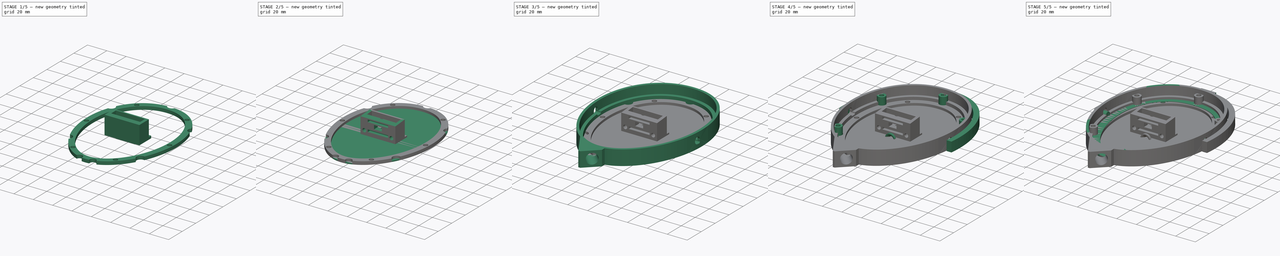
[diagram: build sequence overview — one tinted view per stage of 5, left to right]
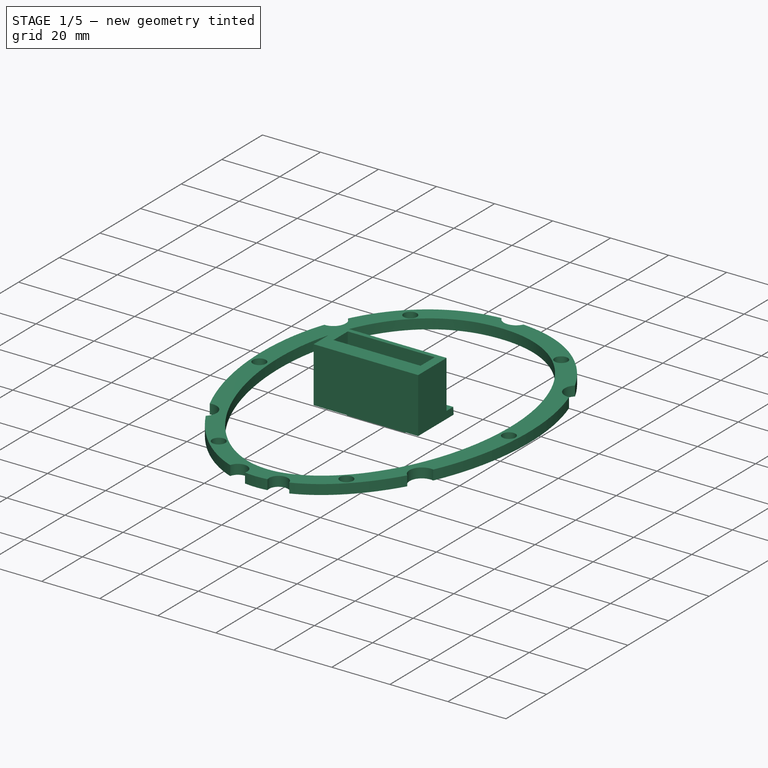
[diagram: stage 1 of 5 — iso view after this stage's code; geometry added in this stage tinted green]
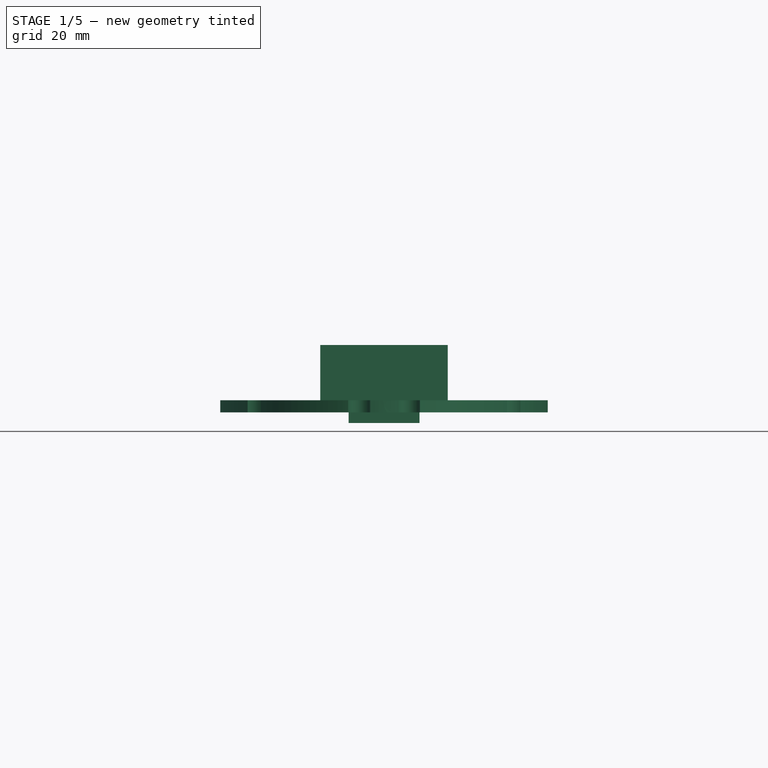
[diagram: stage 1 of 5 — front view after this stage's code; geometry added in this stage tinted green]
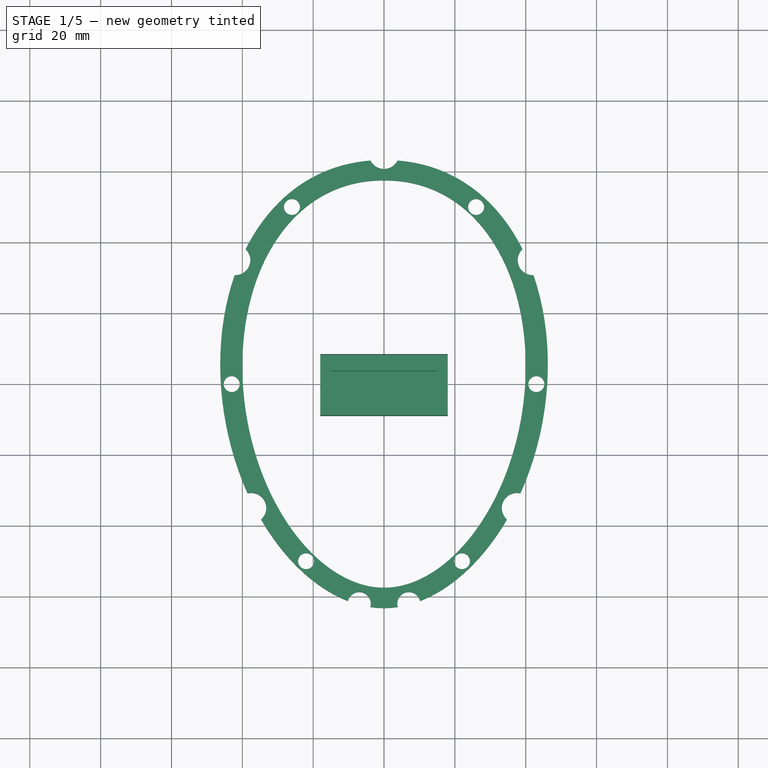
[diagram: stage 1 of 5 — top view after this stage's code; geometry added in this stage tinted green]
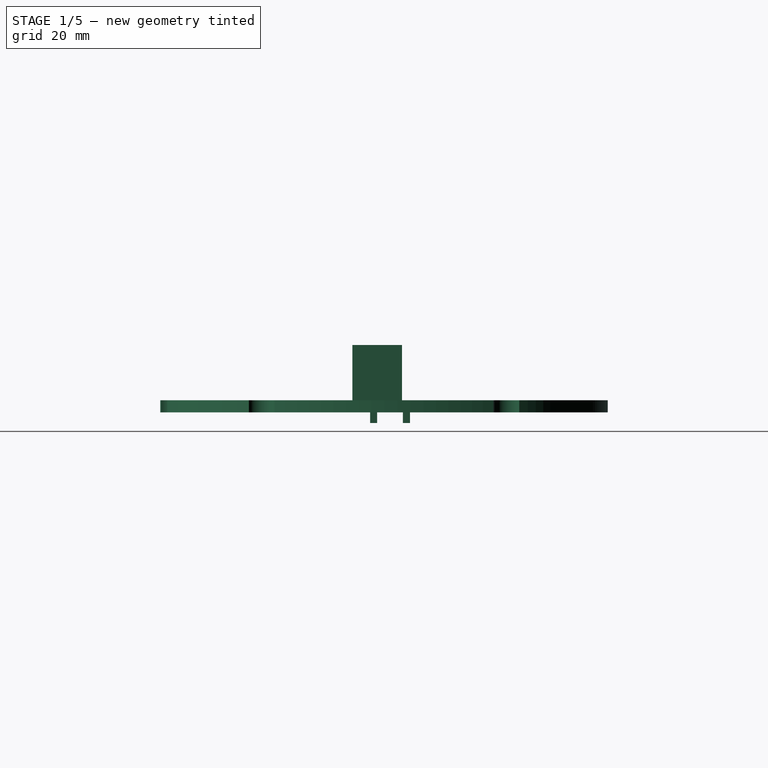
[diagram: stage 1 of 5 — right view after this stage's code; geometry added in this stage tinted green]
FCSTD DOCUMENT  (FreeCAD 1.1R44795 (Git))
Label: h1
License: All rights reserved
LicenseURL: https://en.wikipedia.org/wiki/All_rights_reserved
objects: Sketcher::SketchObject×54, PartDesign::Pocket×18, PartDesign::Pad×17, PartDesign::Hole×14, PartDesign::Body×9, App::Point×9, PartDesign::Plane×5, PartDesign::Fillet×4, PartDesign::Chamfer×2, PartDesign::Mirrored×1
note: 289 computed .brp shape members not serialized (recipe doc carries the construction recipe); baked Part::Feature solids carry a one-line shape summary decoded from their .brp

FEATURE [PartDesign::Body] Body007  label="Spacer"
  AllowCompound = false
  Group = -> [Sketch044,Pad019,Sketch045,Hole006,Sketch046,Hole007,Sketch047,Sketch048,Sketch049,Pocket013]
  Origin = -> Origin007
  Placement = pos=(0,0,5.4) rot=(0,0,1;0rad)
  Tip = -> Pocket013
FEATURE [Sketcher::SketchObject] Sketch050
  ArcFitTolerance = 1e-06
  AttachmentSupport = -> [XY_Plane008]
  ExternalTypes = [0]
  FullyConstrained = true
  MakeInternals = false
  MapMode = 5
  _ExternalGeoVersion = 0
  sketch-geometry (6):
    g0: LineSegment StartX=-18 StartY=-9 StartZ=0 EndX=18 EndY=-9 EndZ=0
    g1: LineSegment StartX=18 StartY=-9 StartZ=0 EndX=18 EndY=5 EndZ=0
    g2: LineSegment StartX=18 StartY=5 StartZ=0 EndX=-18 EndY=5 EndZ=0
    g3: LineSegment StartX=-18 StartY=5 StartZ=0 EndX=-18 EndY=-9 EndZ=0
    g4: GeomPoint [constr] X=0 Y=-2 Z=0
    g5: GeomPoint [constr] X=20 Y=6.5 Z=0
  constraints (15):
    c: Coincident(g0,g1)
    c: Coincident(g1,g2)
    c: Coincident(g2,g3)
    c: Coincident(g3,g0)
    c: Horizontal(g0)
    c: Horizontal(g2)
    c: Vertical(g1)
    c: Vertical(g3)
    c: Symmetric(g2,g0,g4)
    c: Distance(g1,g3) = 36
    c: Distance(g0,g2) = 14
    c: PointOnObject(g4,g-2)
    c: DistanceY(g4,g-1) = 2
    c: DistanceX(g4,g5) = 20
    c: DistanceY(g-1,g5) = 6.5
FEATURE [PartDesign::Pad] Pad020  label="#5 - Body"
  Direction = (0,0,1)
  Length = 19
  Length2 = 10
  Profile = -> Sketch050
  ReferenceAxis = -> Sketch050 [N_Axis]
  Refine = true
  SideType = 0
  Suppressed = false
  Type = 0
  Type2 = 0
FEATURE [Sketcher::SketchObject] Sketch051
  ArcFitTolerance = 1e-06
  AttachmentSupport = -> [Pad020]
  ExternalTypes = [0]
  FullyConstrained = true
  MakeInternals = false
  MapMode = 5
  Placement = pos=(0,0,19) rot=(0,0,1;0rad)
  _ExternalGeoVersion = 0
  sketch-geometry (5):
    g0: LineSegment StartX=-15 StartY=-3.5 StartZ=0 EndX=15 EndY=-3.5 EndZ=0
    g1: LineSegment StartX=15 StartY=-3.5 StartZ=0 EndX=15 EndY=3.5 EndZ=0
    g2: LineSegment StartX=15 StartY=3.5 StartZ=0 EndX=-15 EndY=3.5 EndZ=0
    g3: LineSegment StartX=-15 StartY=3.5 StartZ=0 EndX=-15 EndY=-3.5 EndZ=0
    g4: GeomPoint [constr] X=0 Y=0 Z=0
  constraints (12):
    c: Coincident(g0,g1)
    c: Coincident(g1,g2)
    c: Coincident(g2,g3)
    c: Coincident(g3,g0)
    c: Horizontal(g0)
    c: Horizontal(g2)
    c: Vertical(g1)
    c: Vertical(g3)
    c: Symmetric(g2,g0,g4)
    c: Distance(g1,g3) = 30
    c: Distance(g0,g2) = 7
    c: Coincident(g4,g-1)
FEATURE [PartDesign::Pocket] Pocket014  label="#5 - Headband Arm Hole"
  BaseFeature = -> Pad020
  Direction = (0,0,-1)
  Length = 11
  Length2 = 5
  Profile = -> Sketch051
  ReferenceAxis = -> Sketch051 [N_Axis]
  Refine = true
  SideType = 0
  Suppressed = false
  Type = 0
  Type2 = 0
FEATURE [Sketcher::SketchObject] Sketch057  label="#6 - Body Sketch"
  ArcFitTolerance = 1e-06
  AttachmentSupport = -> [XY_Plane009]
  ExternalTypes = [0]
  FullyConstrained = true
  MakeInternals = false
  MapMode = 5
  _ExternalGeoVersion = 0
  sketch-geometry (5):
    g0: LineSegment StartX=-18 StartY=-9 StartZ=0 EndX=18 EndY=-9 EndZ=0
    g1: LineSegment StartX=18 StartY=-9 StartZ=0 EndX=18 EndY=9 EndZ=0
    g2: LineSegment StartX=18 StartY=9 StartZ=0 EndX=-18 EndY=9 EndZ=0
    g3: LineSegment StartX=-18 StartY=9 StartZ=0 EndX=-18 EndY=-9 EndZ=0
    g4: GeomPoint [constr] X=0 Y=0 Z=0
  constraints (12):
    c: Coincident(g0,g1)
    c: Coincident(g1,g2)
    c: Coincident(g2,g3)
    c: Coincident(g3,g0)
    c: Horizontal(g0)
    c: Horizontal(g2)
    c: Vertical(g1)
    c: Vertical(g3)
    c: Symmetric(g2,g0,g4)
    c: Distance(g1,g3) = 36
    c: Distance(g0,g2) = 18
    c: Coincident(g4,g-1)
FEATURE [PartDesign::Pad] Pad021  label="#6 - Body"
  Direction = (0,0,1)
  Length = 2.5
  Length2 = 10
  Profile = -> Sketch057
  ReferenceAxis = -> Sketch057 [N_Axis]
  Refine = true
  SideType = 0
  Suppressed = false
  Type = 0
  Type2 = 0
FEATURE [Sketcher::SketchObject] Sketch058  label="#6 - Headstrap mounting holes Sketch"
  ArcFitTolerance = 1e-06
  AttachmentSupport = -> [Pad021]
  ExternalTypes = [0]
  FullyConstrained = true
  MakeInternals = false
  MapMode = 5
  Placement = pos=(0,0,2.5) rot=(0,0,1;0rad)
  _ExternalGeoVersion = 0
  sketch-geometry (3):
    g0: Circle CenterX=-14 CenterY=-3.5 CenterZ=0 NormalX=0 NormalY=0 NormalZ=1 AngleXU=0 Radius=1.5
    g1: Circle CenterX=14 CenterY=-3.5 CenterZ=0 NormalX=0 NormalY=0 NormalZ=1 AngleXU=0 Radius=1.5
    g2: LineSegment [constr] StartX=-14 StartY=-3.5 StartZ=0 EndX=14 EndY=-3.5 EndZ=0
  constraints (8):
    c: Diameter(g0) = 3
    c: Diameter(g1) = 3
    c: Coincident(g2,g0)
    c: Coincident(g2,g1)
    c: Horizontal(g2)
    c: DistanceX(g0,g-1) = 14
    c: DistanceX(g-1,g1) = 14
    c: DistanceY(g-1,g0) = -3.5
FEATURE [PartDesign::Hole] Hole010  label="#6 - Headstrap mounting holes"
  BaseFeature = -> Pad021
  BaseProfileType = 6
  CustomThreadClearance = 0
  Depth = 81.4601
  DepthType = 1
  Diameter = 3.4
  DrillForDepth = false
  DrillPoint = 1
  DrillPointAngle = 118
  HoleCutCountersinkAngle = 90
  HoleCutCustomValues = false
  HoleCutDepth = 3.2
  HoleCutDiameter = 6.4
  HoleCutType = 2
  ModelThread = false
  Profile = -> Sketch058
  Refine = true
  Suppressed = false
  Tapered = false
  TaperedAngle = 90
  ThreadClass = 0
  ThreadDepth = 81.4601
  ThreadDepthType = 0
  ThreadDiameter = 3
  ThreadDirection = 0
  ThreadFit = 0
  ThreadSize = 9
  ThreadType = 1
  Threaded = false
  UseCustomThreadClearance = false
FEATURE [PartDesign::Body] Body008  label="Yoke-Headband Connector (#5)"
  AllowCompound = false
  Group = -> [Sketch050,Pad020,Sketch051,Pocket014,Sketch052,Pocket015,Sketch053,Pocket016,Sketch054,Hole008,Sketch055,Pocket017,Sketch056,Hole009,Sketch060,Pocket019]
  Origin = -> Origin008
  Placement = pos=(0,79.5,5.5) rot=(-1,0,0;1.5708rad)
  Tip = -> Pocket019
FEATURE [Sketcher::SketchObject] Sketch061
  ArcFitTolerance = 1e-06
  AttachmentOffset = pos=(0,0,0) rot=(0,0,1;3.14159rad)
  AttachmentSupport = -> [Hole010]
  ExternalTypes = [0]
  FullyConstrained = true
  MakeInternals = false
  MapMode = 5
  Placement = pos=(0,0,0) rot=(0,-1,0;3.14159rad)
  _ExternalGeoVersion = 0
  sketch-geometry (10):
    g0: LineSegment StartX=-10 StartY=-4 StartZ=0 EndX=10 EndY=-4 EndZ=0
    g1: LineSegment StartX=10 StartY=-4 StartZ=0 EndX=10 EndY=-2 EndZ=0
    g2: LineSegment StartX=10 StartY=-2 StartZ=0 EndX=-10 EndY=-2 EndZ=0
    g3: LineSegment StartX=-10 StartY=-2 StartZ=0 EndX=-10 EndY=-4 EndZ=0
    g4: GeomPoint [constr] X=0 Y=-3 Z=0
    g5: LineSegment StartX=-10 StartY=5.25 StartZ=0 EndX=10 EndY=5.25 EndZ=0
    g6: LineSegment StartX=10 StartY=5.25 StartZ=0 EndX=10 EndY=7.25 EndZ=0
    g7: LineSegment StartX=10 StartY=7.25 StartZ=0 EndX=-10 EndY=7.25 EndZ=0
    g8: LineSegment StartX=-10 StartY=7.25 StartZ=0 EndX=-10 EndY=5.25 EndZ=0
    g9: GeomPoint [constr] X=0 Y=6.25 Z=0
  constraints (26):
    c: Coincident(g0,g1)
    c: Coincident(g1,g2)
    c: Coincident(g2,g3)
    c: Coincident(g3,g0)
    c: Horizontal(g0)
    c: Horizontal(g2)
    c: Vertical(g1)
    c: Vertical(g3)
    c: Symmetric(g2,g0,g4)
    c: Distance(g1,g3) = 20
    c: Distance(g0,g2) = 2
    c: PointOnObject(g4,g-2)
    c: DistanceY(g4,g-1) = 3
    c: Coincident(g5,g6)
    c: Coincident(g6,g7)
    c: Coincident(g7,g8)
    c: Coincident(g8,g5)
    c: Horizontal(g5)
    c: Horizontal(g7)
    c: Vertical(g6)
    c: Vertical(g8)
    c: Symmetric(g7,g5,g9)
    c: Distance(g6,g8) = 20
    c: Distance(g5,g7) = 2
    c: PointOnObject(g9,g-2)
    c: DistanceY(g-1,g9) = 6.25
FEATURE [PartDesign::Pad] Pad022  label="#6 - Notches"
  BaseFeature = -> Hole010
  Direction = (0,0,-1)
  Length = 3
  Length2 = 10
  Profile = -> Sketch061
  ReferenceAxis = -> Sketch061 [N_Axis]
  Refine = true
  SideType = 0
  Suppressed = false
  Type = 0
  Type2 = 0
FEATURE [Sketcher::SketchObject] Sketch062
  ArcFitTolerance = 1e-06
  AttachmentOffset = pos=(-10,2,0) rot=(0,0,1;-1.48353rad)
  AttachmentSupport = -> [Pad022]
  ExternalTypes = [0]
  FullyConstrained = true
  MakeInternals = false
  MapMode = 5
  Placement = pos=(18,-10,2) rot=(-0.043578,-0.998099,-0.043578;4.71049rad)
  _ExternalGeoVersion = 0
  sketch-geometry (5):
    g0: LineSegment StartX=-10 StartY=18.25 StartZ=0 EndX=10 EndY=18.25 EndZ=0
    g1: LineSegment StartX=10 StartY=18.25 StartZ=0 EndX=10 EndY=19.75 EndZ=0
    g2: LineSegment StartX=10 StartY=19.75 StartZ=0 EndX=-10 EndY=19.75 EndZ=0
    g3: LineSegment StartX=-10 StartY=19.75 StartZ=0 EndX=-10 EndY=18.25 EndZ=0
    g4: GeomPoint [constr] X=0 Y=19 Z=0
  constraints (13):
    c: Coincident(g0,g1)
    c: Coincident(g1,g2)
    c: Coincident(g2,g3)
    c: Coincident(g3,g0)
    c: Horizontal(g0)
    c: Horizontal(g2)
    c: Vertical(g1)
    c: Vertical(g3)
    c: Symmetric(g2,g0,g4)
    c: Distance(g1,g3) = 20
    c: Distance(g0,g2) = 1.5
    c: PointOnObject(g4,g-2)
    c: DistanceY(g-1,g4) = 19
FEATURE [PartDesign::Pocket] Pocket020  label="#6 - Top tilt"
  BaseFeature = -> Pad022
  Direction = (-1,0,0)
  Length = 5
  Length2 = 5
  Profile = -> Sketch062
  ReferenceAxis = -> Sketch062 [N_Axis]
  Refine = true
  SideType = 0
  Suppressed = false
  Type = 1
  Type2 = 0
FEATURE [PartDesign::Body] Body009  label="Headband Mounting Plate (#6)"
  AllowCompound = false
  Group = -> [Sketch057,Pad021,Sketch058,Hole010,Sketch061,Pad022,Sketch062,Pocket020]
  Origin = -> Origin009
  Placement = pos=(0,88.5,14.5) rot=(0,0,1;0rad)
  Tip = -> Pocket020
FEATURE [Sketcher::SketchObject] Sketch063  label="#7 - Body "
  ArcFitTolerance = 1e-06
  AttachmentSupport = -> [XY_Plane010]
  ExternalTypes = [0]
  FullyConstrained = false
  MakeInternals = false
  MapMode = 5
  _ExternalGeoVersion = 0
  sketch-geometry (19):
    g0: BSplineCurve PolesCount=11 KnotsCount=3 Degree=5 IsPeriodic=0
    g1: LineSegment [constr] StartX=0.0103071 StartY=63.25 StartZ=0 EndX=-0.0103071 EndY=-63.25 EndZ=0
    g2: LineSegment [constr] StartX=-46.25 StartY=0.00753678 StartZ=0 EndX=46.25 EndY=-0.00753678 EndZ=0
    g3: GeomPoint [constr] X=0.00703081 Y=43.1451 Z=0
    g4: GeomPoint [constr] X=-0.00703081 Y=-43.1451 Z=0
    g5-g11: Circle [constr] x7 (B-spline internal-alignment scaffolding for g0; pole/knot coordinates omitted)
    g12: GeomPoint [constr] X=0.0103071 Y=63.25 Z=0
    g13: GeomPoint [constr] X=-0.0103071 Y=-63.25 Z=0
    g14: GeomPoint [constr] X=0.0103071 Y=63.25 Z=0
    g15-g18: Circle [constr] x4 (B-spline internal-alignment scaffolding for g0; pole/knot coordinates omitted)
  constraints (5):
    c: InternalAlignment(g5-g18 -> g0) x14
    c: DistanceY(g16,g7) = 0
    c: DistanceY(g15,g8) = 0
    c: DistanceY(g8,g-1) = 20.566
    c: DistanceY(g-1,g7) = 42.6735
FEATURE [PartDesign::Pad] Pad023  label="#7 - Body"
  Direction = (0,0,1)
  Length = 3.4
  Length2 = 10
  Profile = -> Sketch063
  ReferenceAxis = -> Sketch063 [N_Axis]
  Refine = true
  SideType = 0
  Suppressed = false
  Type = 0
  Type2 = 0
FEATURE [Sketcher::SketchObject] Sketch064  label="#7 - Mounting Cutouts "
  ArcFitTolerance = 1e-06
  AttachmentSupport = -> [Pad023]
  ExternalTypes = [0]
  FullyConstrained = true
  MakeInternals = false
  MapMode = 5
  Placement = pos=(0,0,3.4) rot=(0,0,1;0rad)
  _ExternalGeoVersion = 0
  sketch-geometry (5):
    g0: Circle CenterX=-42 CenterY=35 CenterZ=0 NormalX=0 NormalY=0 NormalZ=1 AngleXU=0 Radius=4
    g1: Circle CenterX=42 CenterY=35 CenterZ=0 NormalX=0 NormalY=0 NormalZ=1 AngleXU=0 Radius=4
    g2: Circle CenterX=-37.5 CenterY=-35 CenterZ=0 NormalX=0 NormalY=0 NormalZ=1 AngleXU=0 Radius=4
    g3: Circle CenterX=37.5 CenterY=-35 CenterZ=0 NormalX=0 NormalY=0 NormalZ=1 AngleXU=0 Radius=4
    g4: Circle CenterX=0 CenterY=65 CenterZ=0 NormalX=0 NormalY=0 NormalZ=1 AngleXU=0 Radius=4
  constraints (15):
    c: Diameter(g0) = 8
    c: Diameter(g1) = 8
    c: Diameter(g2) = 8
    c: Diameter(g3) = 8
    c: DistanceY(g3,g2) = 0
    c: DistanceY(g1,g0) = 0
    c: DistanceY(g-1,g0) = 35
    c: DistanceX(g0,g-1) = 42
    c: DistanceX(g-1,g1) = 42
    c: DistanceY(g2,g-1) = 35
    c: DistanceX(g2,g-1) = 37.5
    c: DistanceX(g-1,g3) = 37.5
    c: Diameter(g4) = 8
    c: PointOnObject(g4,g-2)
    c: DistanceY(g-1,g4) = 65
FEATURE [PartDesign::Hole] Hole011  label="#7 - Mounting Cutouts"
  BaseFeature = -> Pad023
  BaseProfileType = 6
  CustomThreadClearance = 0
  Depth = 25
  DepthType = 0
  Diameter = 8.5
  DrillForDepth = false
  DrillPoint = 1
  DrillPointAngle = 118
  HoleCutCountersinkAngle = 90
  HoleCutCustomValues = false
  HoleCutDepth = 0
  HoleCutDiameter = 0
  HoleCutType = 0
  ModelThread = false
  Profile = -> Sketch064
  Refine = true
  Suppressed = false
  Tapered = false
  TaperedAngle = 90
  ThreadClass = 0
  ThreadDepth = 25
  ThreadDepthType = 0
  ThreadDiameter = 8.5
  ThreadDirection = 0
  ThreadFit = 0
  ThreadSize = 0
  ThreadType = 0
  Threaded = false
  UseCustomThreadClearance = false
FEATURE [Sketcher::SketchObject] Sketch065  label="#7 - Cable Cutouts "
  ArcFitTolerance = 1e-06
  AttachmentSupport = -> [Hole011]
  ExternalTypes = [0]
  FullyConstrained = true
  MakeInternals = false
  MapMode = 5
  Placement = pos=(0,0,3.4) rot=(0,0,1;0rad)
  _ExternalGeoVersion = 0
  sketch-geometry (2):
    g0: Circle CenterX=7 CenterY=-62 CenterZ=0 NormalX=0 NormalY=0 NormalZ=1 AngleXU=0 Radius=4
    g1: Circle CenterX=-7 CenterY=-62 CenterZ=0 NormalX=0 NormalY=0 NormalZ=1 AngleXU=0 Radius=4
  constraints (6):
    c: Diameter(g0) = 8
    c: DistanceY(g0,g-1) = 62
    c: DistanceX(g-1,g0) = 7
    c: Diameter(g1) = 8
    c: DistanceY(g0,g1) = 0
    c: DistanceX(g1,g-1) = 7
FEATURE [PartDesign::Hole] Hole012  label="#7 - Cable Cutouts"
  BaseFeature = -> Hole011
  BaseProfileType = 6
  CustomThreadClearance = 0
  Depth = 25
  DepthType = 0
  Diameter = 6.5
  DrillForDepth = false
  DrillPoint = 1
  DrillPointAngle = 118
  HoleCutCountersinkAngle = 90
  HoleCutCustomValues = false
  HoleCutDepth = 0
  HoleCutDiameter = 6.1
  HoleCutType = 0
  ModelThread = false
  Profile = -> Sketch065
  Refine = true
  Suppressed = false
  Tapered = false
  TaperedAngle = 90
  ThreadClass = 0
  ThreadDepth = 25
  ThreadDepthType = 0
  ThreadDiameter = 6.5
  ThreadDirection = 0
  ThreadFit = 0
  ThreadSize = 0
  ThreadType = 0
  Threaded = false
  UseCustomThreadClearance = false
FEATURE [Sketcher::SketchObject] Sketch066  label="#7 - Inner Hole "
  ArcFitTolerance = 1e-06
  AttachmentSupport = -> [Hole012]
  ExternalTypes = [0]
  FullyConstrained = false
  MakeInternals = false
  MapMode = 5
  Placement = pos=(0,0,3.4) rot=(0,0,1;0rad)
  _ExternalGeoVersion = 0
  sketch-geometry (19):
    g0: BSplineCurve PolesCount=11 KnotsCount=3 Degree=5 IsPeriodic=0
    g1: LineSegment [constr] StartX=-1.87907e-05 StartY=-57.5 StartZ=0 EndX=1.87907e-05 EndY=57.5 EndZ=0
    g2: LineSegment [constr] StartX=40 StartY=-1.30718e-05 StartZ=0 EndX=-40 EndY=1.30718e-05 EndZ=0
    g3: GeomPoint [constr] X=-1.34988e-05 Y=-41.3068 Z=0
    g4: GeomPoint [constr] X=1.34988e-05 Y=41.3068 Z=0
    g5-g11: Circle [constr] x7 (B-spline internal-alignment scaffolding for g0; pole/knot coordinates omitted)
    g12: GeomPoint [constr] X=-1.87907e-05 Y=-57.5 Z=0
    g13: GeomPoint [constr] X=1.87907e-05 Y=57.5 Z=0
    g14: GeomPoint [constr] X=-1.87907e-05 Y=-57.5 Z=0
    g15-g18: Circle [constr] x4 (B-spline internal-alignment scaffolding for g0; pole/knot coordinates omitted)
  constraints (6):
    c: Angle(g1) = 1.5708
    c: InternalAlignment(g5-g18 -> g0) x14
    c: DistanceY(g8,g15) = 0
    c: DistanceY(g7,g16) = 0
    c: DistanceY(g16,g-1) = 18.6875
    c: DistanceY(g-1,g15) = 38.8125
FEATURE [PartDesign::Pocket] Pocket021  label="#7 - Inner Hole"
  BaseFeature = -> Hole012
  Direction = (0,0,-1)
  Length = 5
  Length2 = 5
  Profile = -> Sketch066
  ReferenceAxis = -> Sketch066 [N_Axis]
  Refine = true
  SideType = 0
  Suppressed = false
  Type = 1
  Type2 = 0
FEATURE [Sketcher::SketchObject] Sketch067  label="#7 - Screw Holes "
  ArcFitTolerance = 1e-06
  AttachmentSupport = -> [Hole012]
  ExternalTypes = [0]
  FullyConstrained = true
  MakeInternals = false
  MapMode = 5
  Placement = pos=(0,0,3.4) rot=(0,0,1;0rad)
  _ExternalGeoVersion = 0
  sketch-geometry (6):
    g0: Circle CenterX=-26 CenterY=50 CenterZ=0 NormalX=0 NormalY=0 NormalZ=1 AngleXU=0 Radius=1
    g1: Circle CenterX=26 CenterY=50 CenterZ=0 NormalX=0 NormalY=0 NormalZ=1 AngleXU=0 Radius=1
    g2: Circle CenterX=-22 CenterY=-50 CenterZ=0 NormalX=0 NormalY=0 NormalZ=1 AngleXU=0 Radius=1
    g3: Circle CenterX=22 CenterY=-50 CenterZ=0 NormalX=0 NormalY=0 NormalZ=1 AngleXU=0 Radius=1
    g4: Circle CenterX=43 CenterY=0 CenterZ=0 NormalX=0 NormalY=0 NormalZ=1 AngleXU=0 Radius=1
    g5: Circle CenterX=-43 CenterY=0 CenterZ=0 NormalX=0 NormalY=0 NormalZ=1 AngleXU=0 Radius=1
  constraints (18):
    c: Diameter(g0) = 2
    c: Diameter(g1) = 2
    c: Diameter(g2) = 2
    c: Diameter(g3) = 2
    c: Diameter(g4) = 2
    c: PointOnObject(g4,g-1)
    c: Diameter(g5) = 2
    c: PointOnObject(g5,g-1)
    c: DistanceX(g5,g-1) = 43
    c: DistanceX(g-1,g4) = 43
    c: DistanceX(g2,g-1) = 22
    c: DistanceX(g-1,g3) = 22
    c: DistanceY(g2,g3) = 0
    c: DistanceY(g1,g0) = 0
    c: DistanceY(g-1,g0) = 50
    c: DistanceY(g2,g-1) = 50
    c: DistanceX(g0,g-1) = 26
    c: DistanceX(g-1,g1) = 26
FEATURE [PartDesign::Hole] Hole013  label="#7 - Screw Holes"
  BaseFeature = -> Pocket021
  BaseProfileType = 6
  CustomThreadClearance = 0
  Depth = 5
  DepthType = 0
  Diameter = 4.5
  DrillForDepth = false
  DrillPoint = 1
  DrillPointAngle = 118
  HoleCutCountersinkAngle = 90
  HoleCutCustomValues = false
  HoleCutDepth = 0
  HoleCutDiameter = 6.1
  HoleCutType = 0
  ModelThread = false
  Profile = -> Sketch067
  Refine = true
  Suppressed = false
  Tapered = false
  TaperedAngle = 90
  ThreadClass = 0
  ThreadDepth = 5
  ThreadDepthType = 0
  ThreadDiameter = 4.5
  ThreadDirection = 0
  ThreadFit = 0
  ThreadSize = 0
  ThreadType = 0
  Threaded = false
  UseCustomThreadClearance = false
FEATURE [PartDesign::Body] Body010  label="Driver Padding (#7)"
  AllowCompound = false
  Group = -> [Sketch063,Pad023,Sketch064,Hole011,Sketch065,Hole012,Sketch066,Sketch067,Pocket021,Hole013]
  Origin = -> Origin010
  Placement = pos=(0,0,1) rot=(0,0,1;0rad)
  Tip = -> Hole013
FEATURE [App::Point] Origin011  label="Origin"
  Role = Origin
FEATURE [App::Point] Origin012  label="Origin"
  Role = Origin
FEATURE [App::Point] Origin013  label="Origin"
  Role = Origin
FEATURE [App::Point] Origin014  label="Origin"
  Role = Origin
FEATURE [App::Point] Origin015  label="Origin"
  Role = Origin
FEATURE [App::Point] Origin016  label="Origin"
  Role = Origin
FEATURE [App::Point] Origin017  label="Origin"
  Role = Origin
FEATURE [App::Point] Origin018  label="Origin"
  Role = Origin
FEATURE [App::Point] Origin019  label="Origin"
  Role = Origin
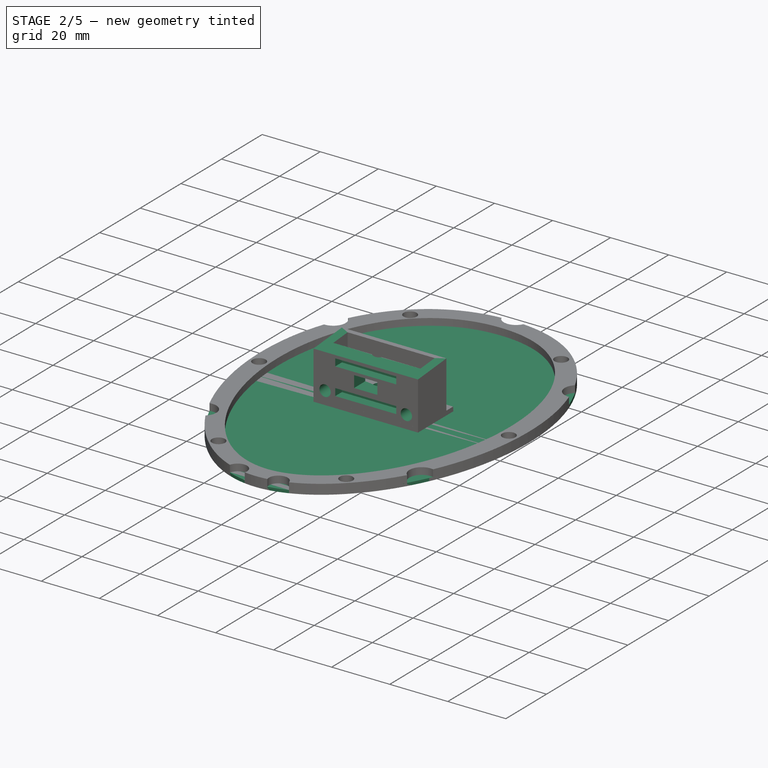
[diagram: stage 2 of 5 — iso view after this stage's code; geometry added in this stage tinted green]
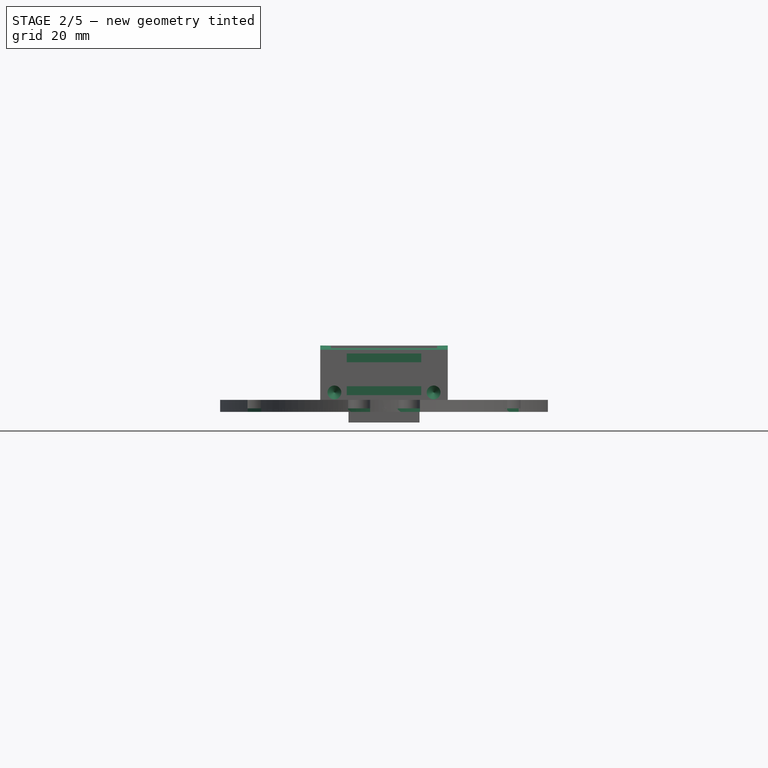
[diagram: stage 2 of 5 — front view after this stage's code; geometry added in this stage tinted green]
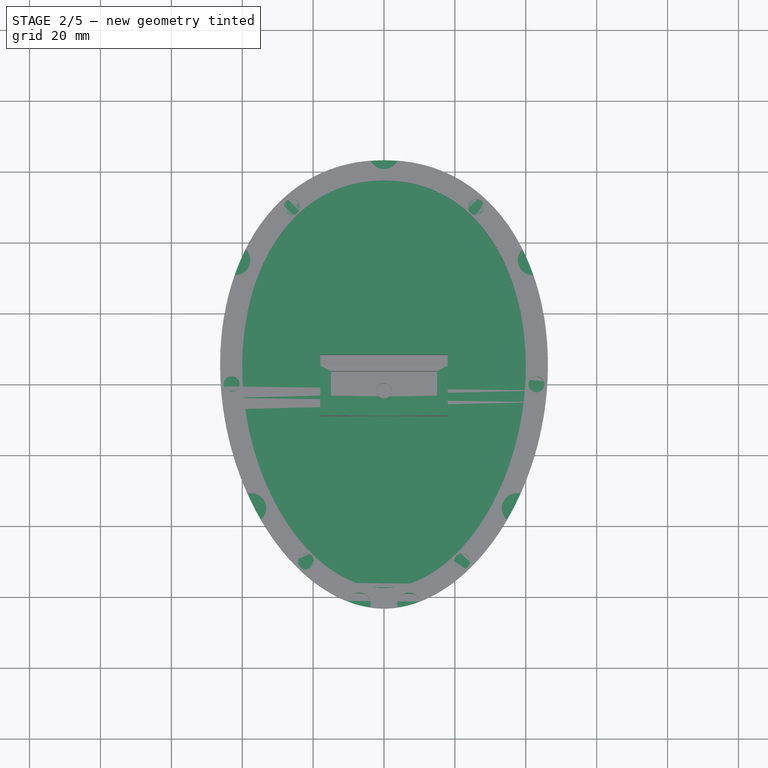
[diagram: stage 2 of 5 — top view after this stage's code; geometry added in this stage tinted green]
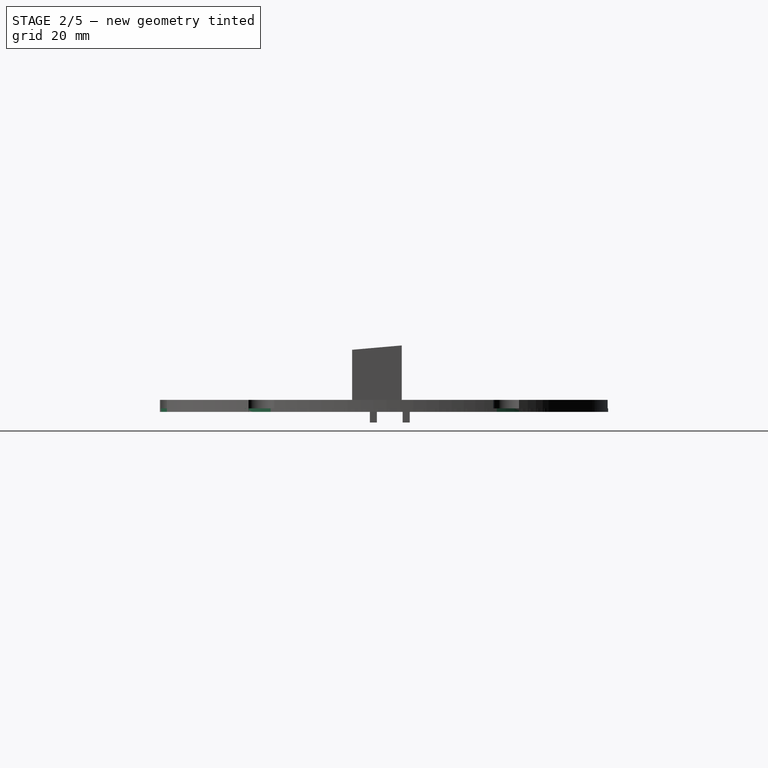
[diagram: stage 2 of 5 — right view after this stage's code; geometry added in this stage tinted green]
FEATURE [PartDesign::Body] Body001  label="Earcup (#2)"
  AllowCompound = false
  Group = -> [Sketch002,Pad001,DatumPlane,Sketch003,Pad002,Chamfer,Chamfer001,Sketch004,Hole,Sketch005,Pocket001,Sketch006,Pocket002,DatumPlane001,Sketch007,Pocket003,Sketch008,Pocket004,Sketch009,Pocket005,Sketch014,Pad005,Sketch015,Hole001,Sketch032,Pad014,Sketch036,Pad017,Mirrored,Fillet003,Fillet004]
  Origin = -> Origin001
  Tip = -> Fillet004
FEATURE [Sketcher::SketchObject] Sketch037
  ArcFitTolerance = 1e-06
  AttachmentSupport = -> [XY_Plane006]
  ExternalTypes = [0]
  FullyConstrained = false
  MakeInternals = false
  MapMode = 5
  _ExternalGeoVersion = 0
  sketch-geometry (19):
    g0: BSplineCurve PolesCount=11 KnotsCount=3 Degree=5 IsPeriodic=0
    g1: LineSegment [constr] StartX=0.0103071 StartY=63.25 StartZ=0 EndX=-0.0103071 EndY=-63.25 EndZ=0
    g2: LineSegment [constr] StartX=-46.25 StartY=0.00753678 StartZ=0 EndX=46.25 EndY=-0.00753678 EndZ=0
    g3: GeomPoint [constr] X=0.00703081 Y=43.1451 Z=0
    g4: GeomPoint [constr] X=-0.00703081 Y=-43.1451 Z=0
    g5-g11: Circle [constr] x7 (B-spline internal-alignment scaffolding for g0; pole/knot coordinates omitted)
    g12: GeomPoint [constr] X=0.0103071 Y=63.25 Z=0
    g13: GeomPoint [constr] X=-0.0103071 Y=-63.25 Z=0
    g14: GeomPoint [constr] X=0.0103071 Y=63.25 Z=0
    g15-g18: Circle [constr] x4 (B-spline internal-alignment scaffolding for g0; pole/knot coordinates omitted)
  constraints (5):
    c: InternalAlignment(g5-g18 -> g0) x14
    c: DistanceY(g16,g7) = 0
    c: DistanceY(g15,g8) = 0
    c: DistanceY(g8,g-1) = 20.566
    c: DistanceY(g-1,g7) = 42.6735
FEATURE [PartDesign::Pad] Pad018  label="Stator Body"
  Direction = (0,0,1)
  Length = 1
  Length2 = 10
  Profile = -> Sketch037
  ReferenceAxis = -> Sketch037 [N_Axis]
  Refine = true
  SideType = 0
  Suppressed = false
  Type = 0
  Type2 = 0
FEATURE [Sketcher::SketchObject] Sketch041  label="Stator Hole Outline"
  ArcFitTolerance = 1e-06
  AttachmentSupport = -> [Hole005]
  ExternalTypes = [0]
  FullyConstrained = false
  MakeInternals = false
  MapMode = 5
  Placement = pos=(0,0,1) rot=(0,0,1;0rad)
  _ExternalGeoVersion = 0
  sketch-geometry (19):
    g0: BSplineCurve PolesCount=11 KnotsCount=3 Degree=5 IsPeriodic=0
    g1: LineSegment [constr] StartX=-1.87907e-05 StartY=-57.5 StartZ=0 EndX=1.87907e-05 EndY=57.5 EndZ=0
    g2: LineSegment [constr] StartX=40 StartY=-1.30718e-05 StartZ=0 EndX=-40 EndY=1.30718e-05 EndZ=0
    g3: GeomPoint [constr] X=-1.34988e-05 Y=-41.3068 Z=0
    g4: GeomPoint [constr] X=1.34988e-05 Y=41.3068 Z=0
    g5-g11: Circle [constr] x7 (B-spline internal-alignment scaffolding for g0; pole/knot coordinates omitted)
    g12: GeomPoint [constr] X=-1.87907e-05 Y=-57.5 Z=0
    g13: GeomPoint [constr] X=1.87907e-05 Y=57.5 Z=0
    g14: GeomPoint [constr] X=-1.87907e-05 Y=-57.5 Z=0
    g15-g18: Circle [constr] x4 (B-spline internal-alignment scaffolding for g0; pole/knot coordinates omitted)
  constraints (6):
    c: Angle(g1) = 1.5708
    c: InternalAlignment(g5-g18 -> g0) x14
    c: DistanceY(g8,g15) = 0
    c: DistanceY(g7,g16) = 0
    c: DistanceY(g16,g-1) = 18.6875
    c: DistanceY(g-1,g15) = 38.8125
FEATURE [Sketcher::SketchObject] Sketch042  label="Stator Screw Holes"
  ArcFitTolerance = 1e-06
  AttachmentSupport = -> [Hole005]
  ExternalTypes = [0]
  FullyConstrained = true
  MakeInternals = false
  MapMode = 5
  Placement = pos=(0,0,1) rot=(0,0,1;0rad)
  _ExternalGeoVersion = 0
  sketch-geometry (6):
    g0: Circle CenterX=-26 CenterY=50 CenterZ=0 NormalX=0 NormalY=0 NormalZ=1 AngleXU=0 Radius=1
    g1: Circle CenterX=26 CenterY=50 CenterZ=0 NormalX=0 NormalY=0 NormalZ=1 AngleXU=0 Radius=1
    g2: Circle CenterX=-22 CenterY=-50 CenterZ=0 NormalX=0 NormalY=0 NormalZ=1 AngleXU=0 Radius=1
    g3: Circle CenterX=22 CenterY=-50 CenterZ=0 NormalX=0 NormalY=0 NormalZ=1 AngleXU=0 Radius=1
    g4: Circle CenterX=43 CenterY=0 CenterZ=0 NormalX=0 NormalY=0 NormalZ=1 AngleXU=0 Radius=1
    g5: Circle CenterX=-43 CenterY=0 CenterZ=0 NormalX=0 NormalY=0 NormalZ=1 AngleXU=0 Radius=1
  constraints (18):
    c: Diameter(g0) = 2
    c: Diameter(g1) = 2
    c: Diameter(g2) = 2
    c: Diameter(g3) = 2
    c: Diameter(g4) = 2
    c: PointOnObject(g4,g-1)
    c: Diameter(g5) = 2
    c: PointOnObject(g5,g-1)
    c: DistanceX(g5,g-1) = 43
    c: DistanceX(g-1,g4) = 43
    c: DistanceX(g2,g-1) = 22
    c: DistanceX(g-1,g3) = 22
    c: DistanceY(g2,g3) = 0
    c: DistanceY(g1,g0) = 0
    c: DistanceY(g-1,g0) = 50
    c: DistanceY(g2,g-1) = 50
    c: DistanceX(g0,g-1) = 26
    c: DistanceX(g-1,g1) = 26
FEATURE [Sketcher::SketchObject] Sketch043  label="Stator Center"
  ArcFitTolerance = 1e-06
  AttachmentSupport = -> [Hole005]
  ExternalTypes = [0]
  FullyConstrained = true
  MakeInternals = false
  MapMode = 5
  Placement = pos=(0,0,1) rot=(0,0,1;0rad)
  _ExternalGeoVersion = 0
  sketch-geometry (1):
    g0: Circle CenterX=0 CenterY=0 CenterZ=0 NormalX=0 NormalY=0 NormalZ=1 AngleXU=0 Radius=0.725
  constraints (2):
    c: Diameter(g0) = 1.45
    c: Coincident(g0,g-1)
FEATURE [PartDesign::Body] Body006  label="Stator"
  AllowCompound = false
  Group = -> [Sketch037,Pad018,Sketch039,Hole004,Sketch040,Hole005,Sketch041,Sketch042,Sketch043]
  Origin = -> Origin006
  Placement = pos=(0,0,4.4) rot=(0,0,1;0rad)
  Tip = -> Hole005
FEATURE [Sketcher::SketchObject] Sketch044
  ArcFitTolerance = 1e-06
  AttachmentSupport = -> [XY_Plane007]
  ExternalTypes = [0]
  FullyConstrained = false
  MakeInternals = false
  MapMode = 5
  _ExternalGeoVersion = 0
  sketch-geometry (19):
    g0: BSplineCurve PolesCount=11 KnotsCount=3 Degree=5 IsPeriodic=0
    g1: LineSegment [constr] StartX=0.0103071 StartY=63.25 StartZ=0 EndX=-0.0103071 EndY=-63.25 EndZ=0
    g2: LineSegment [constr] StartX=-46.25 StartY=0.00753678 StartZ=0 EndX=46.25 EndY=-0.00753678 EndZ=0
    g3: GeomPoint [constr] X=0.00703081 Y=43.1451 Z=0
    g4: GeomPoint [constr] X=-0.00703081 Y=-43.1451 Z=0
    g5-g11: Circle [constr] x7 (B-spline internal-alignment scaffolding for g0; pole/knot coordinates omitted)
    g12: GeomPoint [constr] X=0.0103071 Y=63.25 Z=0
    g13: GeomPoint [constr] X=-0.0103071 Y=-63.25 Z=0
    g14: GeomPoint [constr] X=0.0103071 Y=63.25 Z=0
    g15-g18: Circle [constr] x4 (B-spline internal-alignment scaffolding for g0; pole/knot coordinates omitted)
  constraints (5):
    c: InternalAlignment(g5-g18 -> g0) x14
    c: DistanceY(g16,g7) = 0
    c: DistanceY(g15,g8) = 0
    c: DistanceY(g8,g-1) = 20.566
    c: DistanceY(g-1,g7) = 42.6735
FEATURE [PartDesign::Pad] Pad019  label="Spacer Body"
  Direction = (0,0,1)
  Length = 1
  Length2 = 10
  Profile = -> Sketch044
  ReferenceAxis = -> Sketch044 [N_Axis]
  Refine = true
  SideType = 0
  Suppressed = false
  Type = 0
  Type2 = 0
FEATURE [Sketcher::SketchObject] Sketch045
  ArcFitTolerance = 1e-06
  AttachmentSupport = -> [Pad019]
  ExternalTypes = [0]
  FullyConstrained = true
  MakeInternals = false
  MapMode = 5
  Placement = pos=(0,0,1) rot=(0,0,1;0rad)
  _ExternalGeoVersion = 0
  sketch-geometry (5):
    g0: Circle CenterX=-42 CenterY=35 CenterZ=0 NormalX=0 NormalY=0 NormalZ=1 AngleXU=0 Radius=4
    g1: Circle CenterX=42 CenterY=35 CenterZ=0 NormalX=0 NormalY=0 NormalZ=1 AngleXU=0 Radius=4
    g2: Circle CenterX=-37.5 CenterY=-35 CenterZ=0 NormalX=0 NormalY=0 NormalZ=1 AngleXU=0 Radius=4
    g3: Circle CenterX=37.5 CenterY=-35 CenterZ=0 NormalX=0 NormalY=0 NormalZ=1 AngleXU=0 Radius=4
    g4: Circle CenterX=0 CenterY=65 CenterZ=0 NormalX=0 NormalY=0 NormalZ=1 AngleXU=0 Radius=4
  constraints (15):
    c: Diameter(g0) = 8
    c: Diameter(g1) = 8
    c: Diameter(g2) = 8
    c: Diameter(g3) = 8
    c: DistanceY(g3,g2) = 0
    c: DistanceY(g1,g0) = 0
    c: DistanceY(g-1,g0) = 35
    c: DistanceX(g0,g-1) = 42
    c: DistanceX(g-1,g1) = 42
    c: DistanceY(g2,g-1) = 35
    c: DistanceX(g2,g-1) = 37.5
    c: DistanceX(g-1,g3) = 37.5
    c: Diameter(g4) = 8
    c: PointOnObject(g4,g-2)
    c: DistanceY(g-1,g4) = 65
FEATURE [PartDesign::Hole] Hole006  label="Spacer Mounting Cutouts"
  BaseFeature = -> Pad019
  BaseProfileType = 6
  CustomThreadClearance = 0
  Depth = 25
  DepthType = 0
  Diameter = 8.5
  DrillForDepth = false
  DrillPoint = 1
  DrillPointAngle = 118
  HoleCutCountersinkAngle = 90
  HoleCutCustomValues = false
  HoleCutDepth = 0
  HoleCutDiameter = 0
  HoleCutType = 0
  ModelThread = false
  Profile = -> Sketch045
  Refine = true
  Suppressed = false
  Tapered = false
  TaperedAngle = 90
  ThreadClass = 0
  ThreadDepth = 25
  ThreadDepthType = 0
  ThreadDiameter = 8.5
  ThreadDirection = 0
  ThreadFit = 0
  ThreadSize = 0
  ThreadType = 0
  Threaded = false
  UseCustomThreadClearance = false
FEATURE [Sketcher::SketchObject] Sketch046
  ArcFitTolerance = 1e-06
  AttachmentSupport = -> [Hole006]
  ExternalTypes = [0]
  FullyConstrained = true
  MakeInternals = false
  MapMode = 5
  Placement = pos=(0,0,1) rot=(0,0,1;0rad)
  _ExternalGeoVersion = 0
  sketch-geometry (2):
    g0: Circle CenterX=7 CenterY=-62 CenterZ=0 NormalX=0 NormalY=0 NormalZ=1 AngleXU=0 Radius=3.25
    g1: Circle CenterX=-7 CenterY=-62 CenterZ=0 NormalX=0 NormalY=0 NormalZ=1 AngleXU=0 Radius=3.25
  constraints (6):
    c: Diameter(g0) = 6.5
    c: DistanceY(g0,g-1) = 62
    c: DistanceX(g-1,g0) = 7
    c: Diameter(g1) = 6.5
    c: DistanceY(g0,g1) = 0
    c: DistanceX(g1,g-1) = 7
FEATURE [PartDesign::Hole] Hole007  label="Spacer Solder Cutouts"
  BaseFeature = -> Hole006
  BaseProfileType = 6
  CustomThreadClearance = 0
  Depth = 25
  DepthType = 0
  Diameter = 6.5
  DrillForDepth = false
  DrillPoint = 1
  DrillPointAngle = 118
  HoleCutCountersinkAngle = 90
  HoleCutCustomValues = false
  HoleCutDepth = 0
  HoleCutDiameter = 6.1
  HoleCutType = 0
  ModelThread = false
  Profile = -> Sketch046
  Refine = true
  Suppressed = false
  Tapered = false
  TaperedAngle = 90
  ThreadClass = 0
  ThreadDepth = 25
  ThreadDepthType = 0
  ThreadDiameter = 6.5
  ThreadDirection = 0
  ThreadFit = 0
  ThreadSize = 0
  ThreadType = 0
  Threaded = false
  UseCustomThreadClearance = false
FEATURE [Sketcher::SketchObject] Sketch047  label="Spacer Hole Outline"
  ArcFitTolerance = 1e-06
  AttachmentSupport = -> [Hole007]
  ExternalTypes = [0]
  FullyConstrained = false
  MakeInternals = false
  MapMode = 5
  Placement = pos=(0,0,1) rot=(0,0,1;0rad)
  _ExternalGeoVersion = 0
  sketch-geometry (19):
    g0: BSplineCurve PolesCount=11 KnotsCount=3 Degree=5 IsPeriodic=0
    g1: LineSegment [constr] StartX=-1.87907e-05 StartY=-57.5 StartZ=0 EndX=1.87907e-05 EndY=57.5 EndZ=0
    g2: LineSegment [constr] StartX=40 StartY=-1.30718e-05 StartZ=0 EndX=-40 EndY=1.30718e-05 EndZ=0
    g3: GeomPoint [constr] X=-1.34988e-05 Y=-41.3068 Z=0
    g4: GeomPoint [constr] X=1.34988e-05 Y=41.3068 Z=0
    g5-g11: Circle [constr] x7 (B-spline internal-alignment scaffolding for g0; pole/knot coordinates omitted)
    g12: GeomPoint [constr] X=-1.87907e-05 Y=-57.5 Z=0
    g13: GeomPoint [constr] X=1.87907e-05 Y=57.5 Z=0
    g14: GeomPoint [constr] X=-1.87907e-05 Y=-57.5 Z=0
    g15-g18: Circle [constr] x4 (B-spline internal-alignment scaffolding for g0; pole/knot coordinates omitted)
  constraints (6):
    c: Angle(g1) = 1.5708
    c: InternalAlignment(g5-g18 -> g0) x14
    c: DistanceY(g8,g15) = 0
    c: DistanceY(g7,g16) = 0
    c: DistanceY(g16,g-1) = 18.6875
    c: DistanceY(g-1,g15) = 38.8125
FEATURE [Sketcher::SketchObject] Sketch048  label="Spacer Screw Holes"
  ArcFitTolerance = 1e-06
  AttachmentSupport = -> [Hole007]
  ExternalTypes = [0]
  FullyConstrained = true
  MakeInternals = false
  MapMode = 5
  Placement = pos=(0,0,1) rot=(0,0,1;0rad)
  _ExternalGeoVersion = 0
  sketch-geometry (6):
    g0: Circle CenterX=-26 CenterY=50 CenterZ=0 NormalX=0 NormalY=0 NormalZ=1 AngleXU=0 Radius=1
    g1: Circle CenterX=26 CenterY=50 CenterZ=0 NormalX=0 NormalY=0 NormalZ=1 AngleXU=0 Radius=1
    g2: Circle CenterX=-22 CenterY=-50 CenterZ=0 NormalX=0 NormalY=0 NormalZ=1 AngleXU=0 Radius=1
    g3: Circle CenterX=22 CenterY=-50 CenterZ=0 NormalX=0 NormalY=0 NormalZ=1 AngleXU=0 Radius=1
    g4: Circle CenterX=43 CenterY=0 CenterZ=0 NormalX=0 NormalY=0 NormalZ=1 AngleXU=0 Radius=1
    g5: Circle CenterX=-43 CenterY=0 CenterZ=0 NormalX=0 NormalY=0 NormalZ=1 AngleXU=0 Radius=1
  constraints (18):
    c: Diameter(g0) = 2
    c: Diameter(g1) = 2
    c: Diameter(g2) = 2
    c: Diameter(g3) = 2
    c: Diameter(g4) = 2
    c: PointOnObject(g4,g-1)
    c: Diameter(g5) = 2
    c: PointOnObject(g5,g-1)
    c: DistanceX(g5,g-1) = 43
    c: DistanceX(g-1,g4) = 43
    c: DistanceX(g2,g-1) = 22
    c: DistanceX(g-1,g3) = 22
    c: DistanceY(g2,g3) = 0
    c: DistanceY(g1,g0) = 0
    c: DistanceY(g-1,g0) = 50
    c: DistanceY(g2,g-1) = 50
    c: DistanceX(g0,g-1) = 26
    c: DistanceX(g-1,g1) = 26
FEATURE [Sketcher::SketchObject] Sketch049  label="Spacer Center"
  ArcFitTolerance = 1e-06
  AttachmentSupport = -> [Hole007]
  ExternalTypes = [0]
  FullyConstrained = true
  MakeInternals = false
  MapMode = 5
  Placement = pos=(0,0,1) rot=(0,0,1;0rad)
  _ExternalGeoVersion = 0
  sketch-geometry (1):
    g0: Circle CenterX=0 CenterY=0 CenterZ=0 NormalX=0 NormalY=0 NormalZ=1 AngleXU=0 Radius=0.725
  constraints (2):
    c: Diameter(g0) = 1.45
    c: Coincident(g0,g-1)
FEATURE [PartDesign::Pocket] Pocket013
  BaseFeature = -> Hole007
  Direction = (0,0,-1)
  Length = 5
  Length2 = 5
  Profile = -> Sketch047
  ReferenceAxis = -> Sketch047 [N_Axis]
  Refine = true
  SideType = 0
  Suppressed = false
  Type = 1
  Type2 = 0
FEATURE [Sketcher::SketchObject] Sketch052
  ArcFitTolerance = 1e-06
  AttachmentSupport = -> [Pocket014]
  ExternalTypes = [0]
  FullyConstrained = true
  MakeInternals = false
  MapMode = 5
  Placement = pos=(0,-9,0) rot=(1,0,0;1.5708rad)
  _ExternalGeoVersion = 0
  sketch-geometry (5):
    g0: LineSegment StartX=-4 StartY=9 StartZ=0 EndX=4 EndY=9 EndZ=0
    g1: LineSegment StartX=4 StartY=9 StartZ=0 EndX=4 EndY=13 EndZ=0
    g2: LineSegment StartX=4 StartY=13 StartZ=0 EndX=-4 EndY=13 EndZ=0
    g3: LineSegment StartX=-4 StartY=13 StartZ=0 EndX=-4 EndY=9 EndZ=0
    g4: GeomPoint [constr] X=0 Y=11 Z=0
  constraints (13):
    c: Coincident(g0,g1)
    c: Coincident(g1,g2)
    c: Coincident(g2,g3)
    c: Coincident(g3,g0)
    c: Horizontal(g0)
    c: Horizontal(g2)
    c: Vertical(g1)
    c: Vertical(g3)
    c: Symmetric(g2,g0,g4)
    c: Distance(g1,g3) = 8
    c: Distance(g0,g2) = 4
    c: PointOnObject(g4,g-2)
    c: DistanceY(g-1,g4) = 11
FEATURE [PartDesign::Pocket] Pocket015  label="#5 - Nut Hole"
  BaseFeature = -> Pocket014
  Direction = (0,1,-2e-16)
  Length = 9
  Length2 = 5
  Profile = -> Sketch052
  ReferenceAxis = -> Sketch052 [N_Axis]
  Refine = true
  SideType = 0
  Suppressed = false
  Type = 0
  Type2 = 0
FEATURE [Sketcher::SketchObject] Sketch053
  ArcFitTolerance = 1e-06
  AttachmentSupport = -> [Pocket015]
  ExternalTypes = [0]
  FullyConstrained = true
  MakeInternals = false
  MapMode = 5
  Placement = pos=(0,0,0) rot=(1,0,0;3.14159rad)
  _ExternalGeoVersion = 0
  sketch-geometry (6):
    g0: Circle CenterX=0 CenterY=2 CenterZ=0 NormalX=0 NormalY=0 NormalZ=1 AngleXU=0 Radius=3
    g1: LineSegment StartX=-3 StartY=-1.00002 StartZ=0 EndX=3 EndY=-1.00002 EndZ=0
    g2: LineSegment StartX=3 StartY=-1.00002 StartZ=0 EndX=3 EndY=1.99998 EndZ=0
    g3: LineSegment StartX=3 StartY=1.99998 StartZ=0 EndX=-3 EndY=1.99998 EndZ=0
    g4: LineSegment StartX=-3 StartY=1.99998 StartZ=0 EndX=-3 EndY=-1.00002 EndZ=0
    g5: GeomPoint [constr] X=0 Y=0.499979 Z=0
  constraints (16):
    c: Diameter(g0) = 6
    c: PointOnObject(g0,g-2)
    c: DistanceY(g0,g-1) = -2
    c: Coincident(g1,g2)
    c: Coincident(g2,g3)
    c: Coincident(g3,g4)
    c: Coincident(g4,g1)
    c: Horizontal(g1)
    c: Horizontal(g3)
    c: Vertical(g2)
    c: Vertical(g4)
    c: Symmetric(g3,g1,g5)
    c: Distance(g2,g4) = 6
    c: Distance(g1,g3) = 3
    c: PointOnObject(g5,g-2)
    c: PointOnObject(g2,g0)
FEATURE [PartDesign::Pocket] Pocket016  label="#5 - M4 Bolt Sleeve"
  BaseFeature = -> Pocket015
  Direction = (0,0,1)
  Length = 5.5
  Length2 = 5
  Profile = -> Sketch053
  ReferenceAxis = -> Sketch053 [N_Axis]
  Refine = true
  SideType = 0
  Suppressed = false
  Type = 0
  Type2 = 0
FEATURE [Sketcher::SketchObject] Sketch054
  ArcFitTolerance = 1e-06
  AttachmentSupport = -> [Pocket016]
  ExternalTypes = [0]
  FullyConstrained = true
  MakeInternals = false
  MapMode = 5
  Placement = pos=(0,0,0) rot=(1,0,0;3.14159rad)
  _ExternalGeoVersion = 0
  sketch-geometry (1):
    g0: Circle CenterX=0 CenterY=2 CenterZ=0 NormalX=0 NormalY=0 NormalZ=1 AngleXU=0 Radius=2
  constraints (3):
    c: Diameter(g0) = 4
    c: PointOnObject(g0,g-2)
    c: DistanceY(g0,g-1) = -2
FEATURE [PartDesign::Hole] Hole008  label="#5 - M4 Bolt Sleeve Spacing"
  BaseFeature = -> Pocket016
  BaseProfileType = 6
  CustomThreadClearance = 0
  Depth = 86.3181
  DepthType = 1
  Diameter = 4.5
  DrillForDepth = false
  DrillPoint = 1
  DrillPointAngle = 118
  HoleCutCountersinkAngle = 90
  HoleCutCustomValues = false
  HoleCutDepth = 0
  HoleCutDiameter = 6.1
  HoleCutType = 0
  ModelThread = false
  Profile = -> Sketch054
  Refine = true
  Suppressed = false
  Tapered = false
  TaperedAngle = 90
  ThreadClass = 0
  ThreadDepth = 86.3181
  ThreadDepthType = 0
  ThreadDiameter = 4
  ThreadDirection = 0
  ThreadFit = 0
  ThreadSize = 11
  ThreadType = 1
  Threaded = false
  UseCustomThreadClearance = false
FEATURE [Sketcher::SketchObject] Sketch055
  ArcFitTolerance = 1e-06
  AttachmentOffset = pos=(0,0,0) rot=(0,0,1;0.087266rad)
  AttachmentSupport = -> [Hole008]
  ExternalTypes = [0]
  FullyConstrained = true
  MakeInternals = false
  MapMode = 5
  Placement = pos=(18,0,0) rot=(0.593426,0.543775,0.593426;2.14549rad)
  _ExternalGeoVersion = 0
  sketch-geometry (5):
    g0: LineSegment StartX=-10 StartY=18.25 StartZ=0 EndX=10 EndY=18.25 EndZ=0
    g1: LineSegment StartX=10 StartY=18.25 StartZ=0 EndX=10 EndY=19.75 EndZ=0
    g2: LineSegment StartX=10 StartY=19.75 StartZ=0 EndX=-10 EndY=19.75 EndZ=0
    g3: LineSegment StartX=-10 StartY=19.75 StartZ=0 EndX=-10 EndY=18.25 EndZ=0
    g4: GeomPoint [constr] X=0 Y=19 Z=0
  constraints (13):
    c: Coincident(g0,g1)
    c: Coincident(g1,g2)
    c: Coincident(g2,g3)
    c: Coincident(g3,g0)
    c: Horizontal(g0)
    c: Horizontal(g2)
    c: Vertical(g1)
    c: Vertical(g3)
    c: Symmetric(g2,g0,g4)
    c: Distance(g1,g3) = 20
    c: Distance(g0,g2) = 1.5
    c: PointOnObject(g4,g-2)
    c: DistanceY(g-1,g4) = 19
FEATURE [PartDesign::Pocket] Pocket017  label="#5 - Top tilt"
  BaseFeature = -> Hole008
  Direction = (-1,0,0)
  Length = 5
  Length2 = 5
  Profile = -> Sketch055
  ReferenceAxis = -> Sketch055 [N_Axis]
  Refine = true
  SideType = 0
  Suppressed = false
  Type = 1
  Type2 = 0
FEATURE [Sketcher::SketchObject] Sketch056  label="#5 - Headstrap mounting holes Sketch"
  ArcFitTolerance = 1e-06
  AttachmentSupport = -> [Pocket017]
  ExternalTypes = [0]
  FullyConstrained = true
  MakeInternals = false
  MapMode = 5
  Placement = pos=(0,-9,0) rot=(1,0,0;1.5708rad)
  _ExternalGeoVersion = 0
  sketch-geometry (3):
    g0: Circle CenterX=-14 CenterY=5.5 CenterZ=0 NormalX=0 NormalY=0 NormalZ=1 AngleXU=0 Radius=1.5
    g1: Circle CenterX=14 CenterY=5.5 CenterZ=0 NormalX=0 NormalY=0 NormalZ=1 AngleXU=0 Radius=1.5
    g2: LineSegment [constr] StartX=-14 StartY=5.5 StartZ=0 EndX=14 EndY=5.5 EndZ=0
  constraints (8):
    c: Diameter(g0) = 3
    c: Diameter(g1) = 3
    c: DistanceX(g0,g-1) = 14
    c: DistanceX(g-1,g1) = 14
    c: Coincident(g2,g0)
    c: Coincident(g2,g1)
    c: Horizontal(g2)
    c: DistanceY(g-1,g0) = 5.5
FEATURE [PartDesign::Hole] Hole009  label="#5 - Headstrap mounting holes"
  BaseFeature = -> Pocket017
  BaseProfileType = 6
  CustomThreadClearance = 0
  Depth = 8.5
  DepthType = 0
  Diameter = 3.9
  DrillForDepth = false
  DrillPoint = 1
  DrillPointAngle = 118
  HoleCutCountersinkAngle = 90
  HoleCutCustomValues = false
  HoleCutDepth = 0
  HoleCutDiameter = 6.1
  HoleCutType = 0
  ModelThread = false
  Profile = -> Sketch056
  Refine = true
  Suppressed = false
  Tapered = false
  TaperedAngle = 90
  ThreadClass = 0
  ThreadDepth = 8.5
  ThreadDepthType = 0
  ThreadDiameter = 3.5
  ThreadDirection = 0
  ThreadFit = 0
  ThreadSize = 10
  ThreadType = 1
  Threaded = false
  UseCustomThreadClearance = false
FEATURE [Sketcher::SketchObject] Sketch060
  ArcFitTolerance = 1e-06
  AttachmentSupport = -> [Hole009]
  ExternalTypes = [0]
  FullyConstrained = true
  MakeInternals = false
  MapMode = 5
  Placement = pos=(0,-9,0) rot=(1,0,0;1.5708rad)
  _ExternalGeoVersion = 0
  sketch-geometry (10):
    g0: LineSegment StartX=-10.5 StartY=4.75 StartZ=0 EndX=10.5 EndY=4.75 EndZ=0
    g1: LineSegment StartX=10.5 StartY=4.75 StartZ=0 EndX=10.5 EndY=7.25 EndZ=0
    g2: LineSegment StartX=10.5 StartY=7.25 StartZ=0 EndX=-10.5 EndY=7.25 EndZ=0
    g3: LineSegment StartX=-10.5 StartY=7.25 StartZ=0 EndX=-10.5 EndY=4.75 EndZ=0
    g4: GeomPoint [constr] X=0 Y=6 Z=0
    g5: LineSegment StartX=-10.5 StartY=14 StartZ=0 EndX=10.5 EndY=14 EndZ=0
    g6: LineSegment StartX=10.5 StartY=14 StartZ=0 EndX=10.5 EndY=16.5 EndZ=0
    g7: LineSegment StartX=10.5 StartY=16.5 StartZ=0 EndX=-10.5 EndY=16.5 EndZ=0
    g8: LineSegment StartX=-10.5 StartY=16.5 StartZ=0 EndX=-10.5 EndY=14 EndZ=0
    g9: GeomPoint [constr] X=0 Y=15.25 Z=0
  constraints (26):
    c: Coincident(g0,g1)
    c: Coincident(g1,g2)
    c: Coincident(g2,g3)
    c: Coincident(g3,g0)
    c: Horizontal(g0)
    c: Horizontal(g2)
    c: Vertical(g1)
    c: Vertical(g3)
    c: Symmetric(g2,g0,g4)
    c: Distance(g1,g3) = 21
    c: Distance(g0,g2) = 2.5
    c: PointOnObject(g4,g-2)
    c: DistanceY(g-1,g4) = 6
    c: Coincident(g5,g6)
    c: Coincident(g6,g7)
    c: Coincident(g7,g8)
    c: Coincident(g8,g5)
    c: Horizontal(g5)
    c: Horizontal(g7)
    c: Vertical(g6)
    c: Vertical(g8)
    c: Symmetric(g7,g5,g9)
    c: Distance(g6,g8) = 21
    c: Distance(g5,g7) = 2.5
    c: PointOnObject(g9,g-2)
    c: DistanceY(g4,g9) = 9.25
FEATURE [PartDesign::Pocket] Pocket019  label="#5 - Notches Holes"
  BaseFeature = -> Hole009
  Direction = (0,1,-2e-16)
  Length = 3.25
  Length2 = 5
  Profile = -> Sketch060
  ReferenceAxis = -> Sketch060 [N_Axis]
  Refine = true
  SideType = 0
  Suppressed = false
  Type = 0
  Type2 = 0
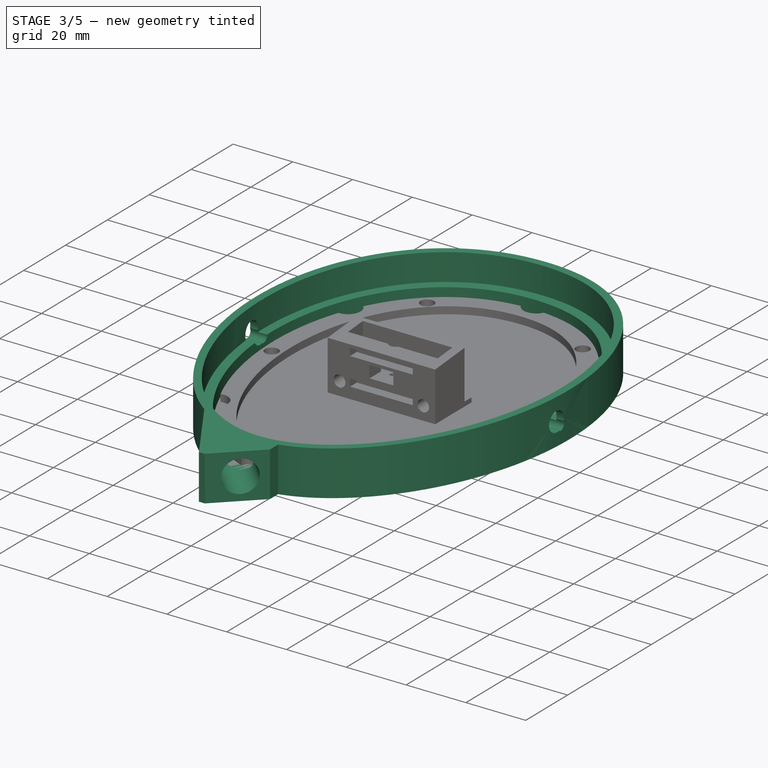
[diagram: stage 3 of 5 — iso view after this stage's code; geometry added in this stage tinted green]
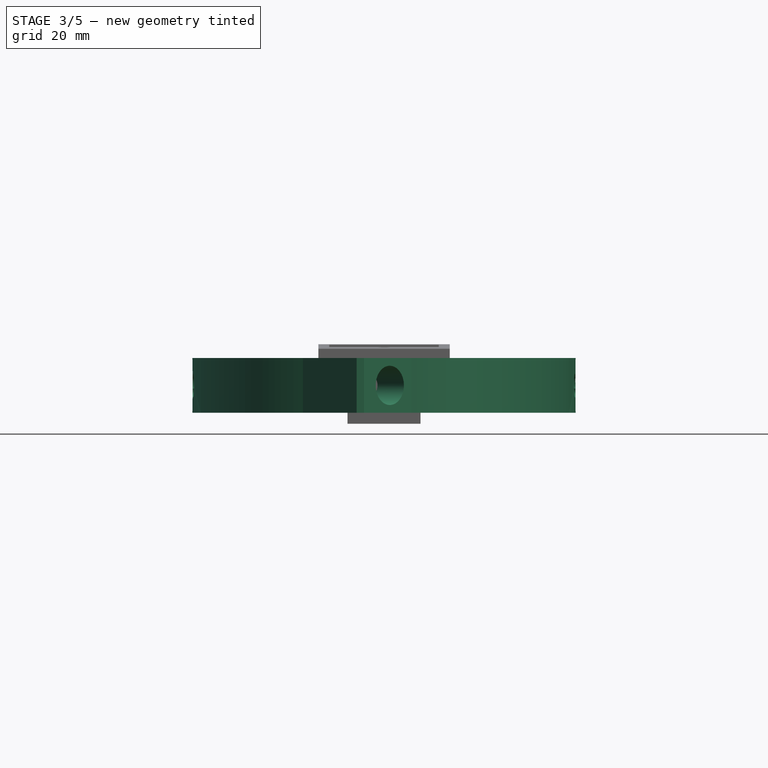
[diagram: stage 3 of 5 — front view after this stage's code; geometry added in this stage tinted green]
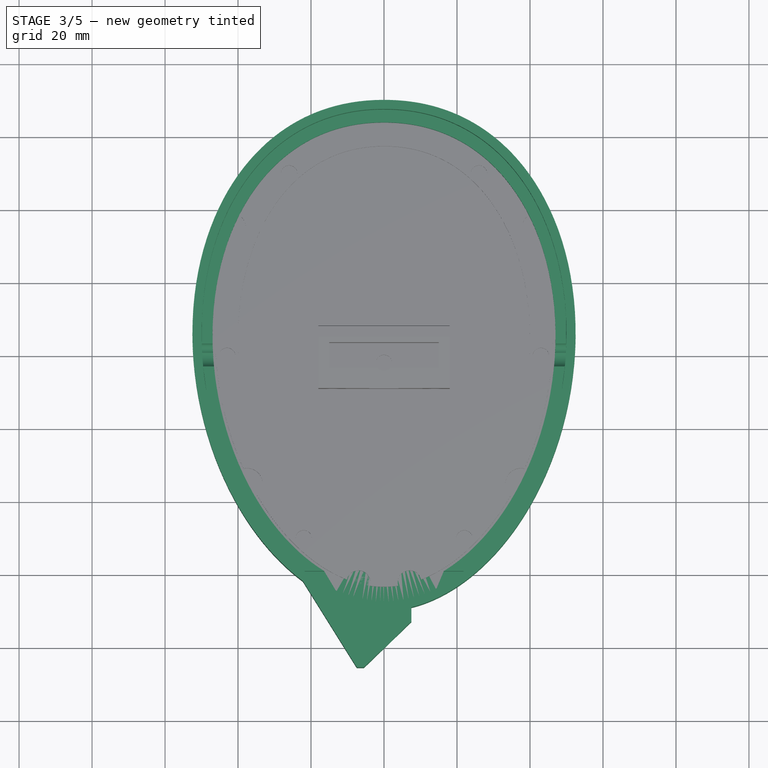
[diagram: stage 3 of 5 — top view after this stage's code; geometry added in this stage tinted green]
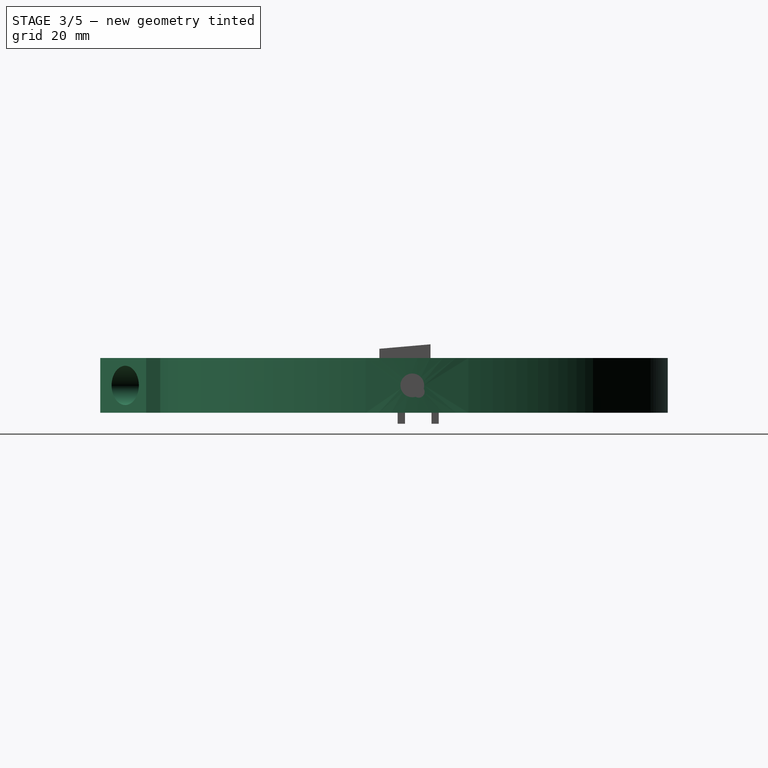
[diagram: stage 3 of 5 — right view after this stage's code; geometry added in this stage tinted green]
FEATURE [Sketcher::SketchObject] Sketch002  label="S_Base"
  ArcFitTolerance = 1e-06
  AttachmentSupport = -> [XY_Plane001]
  ExternalTypes = [0]
  FullyConstrained = false
  MakeInternals = false
  MapMode = 5
  _ExternalGeoVersion = 0
  sketch-geometry (19):
    g0: BSplineCurve PolesCount=11 KnotsCount=3 Degree=5 IsPeriodic=0
    g1: LineSegment [constr] StartX=-2.28756e-05 StartY=-70 StartZ=0 EndX=2.28756e-05 EndY=70 EndZ=0
    g2: LineSegment [constr] StartX=52.5 StartY=-1.71567e-05 StartZ=0 EndX=-52.5 EndY=1.71567e-05 EndZ=0
    g3: GeomPoint [constr] X=-1.51308e-05 Y=-46.3006 Z=0
    g4: GeomPoint [constr] X=1.51308e-05 Y=46.3006 Z=0
    g5-g11: Circle [constr] x7 (B-spline internal-alignment scaffolding for g0; pole/knot coordinates omitted)
    g12: GeomPoint [constr] X=-2.28756e-05 Y=-70 Z=0
    g13: GeomPoint [constr] X=2.28756e-05 Y=70 Z=0
    g14: GeomPoint [constr] X=-2.28756e-05 Y=-70 Z=0
    g15-g18: Circle [constr] x4 (B-spline internal-alignment scaffolding for g0; pole/knot coordinates omitted)
  constraints (6):
    c: Angle(g1) = 1.5708
    c: InternalAlignment(g5-g18 -> g0) x14
    c: DistanceY(g8,g15) = 0
    c: DistanceY(g7,g16) = 0
    c: DistanceY(g16,g-1) = 22.75
    c: DistanceY(g-1,g15) = 47.25
FEATURE [PartDesign::Pad] Pad001  label="Base"
  Direction = (0,0,1)
  Length = 15
  Length2 = 10
  Profile = -> Sketch002
  ReferenceAxis = -> Sketch002 [N_Axis]
  Refine = true
  SideType = 0
  Suppressed = false
  Type = 0
  Type2 = 0
FEATURE [PartDesign::Plane] DatumPlane
  AttachmentOffset = pos=(0,0,-15) rot=(0,0,1;0rad)
  AttachmentSupport = -> [Pad001]
  Length = 130.506
  MapMode = 7
  Placement = pos=(-2.28756e-05,-70,15) rot=(0,1,0;3.14159rad)
  ResizeMode = 0
  Width = 181.05
FEATURE [Sketcher::SketchObject] Sketch003  label="S_Connector"
  ArcFitTolerance = 1e-06
  AttachmentSupport = -> [DatumPlane]
  ExternalTypes = [0]
  FullyConstrained = true
  MakeInternals = false
  MapMode = 5
  Placement = pos=(-2.28756e-05,-70,15) rot=(0,1,0;3.14159rad)
  _ExternalGeoVersion = 0
  sketch-geometry (5):
    g0: LineSegment StartX=-7.5 StartY=-15.5 StartZ=0 EndX=7.5 EndY=-15.5 EndZ=0
    g1: LineSegment StartX=7.5 StartY=-15.5 StartZ=0 EndX=7.5 EndY=1.5 EndZ=0
    g2: LineSegment StartX=7.5 StartY=1.5 StartZ=0 EndX=-7.5 EndY=1.5 EndZ=0
    g3: LineSegment StartX=-7.5 StartY=1.5 StartZ=0 EndX=-7.5 EndY=-15.5 EndZ=0
    g4: GeomPoint [constr] X=0 Y=-7 Z=0
  constraints (13):
    c: Coincident(g0,g1)
    c: Coincident(g1,g2)
    c: Coincident(g2,g3)
    c: Coincident(g3,g0)
    c: Horizontal(g0)
    c: Horizontal(g2)
    c: Vertical(g1)
    c: Vertical(g3)
    c: Symmetric(g2,g0,g4)
    c: Distance(g1,g3) = 15
    c: Distance(g0,g2) = 17
    c: PointOnObject(g4,g-2)
    c: DistanceY(g4,g-1) = 7
FEATURE [PartDesign::Pad] Pad002  label="Connector"
  BaseFeature = -> Pad001
  Direction = (0,0,-1)
  Length = 15
  Length2 = 10
  Profile = -> Sketch003
  ReferenceAxis = -> Sketch003 [N_Axis]
  Refine = true
  SideType = 0
  Suppressed = false
  Type = 0
  Type2 = 0
FEATURE [PartDesign::Chamfer] Chamfer  label="Connector - RChamfer"
  Angle = 44
  Base = -> Pad002 [Edge1]
  BaseFeature = -> Pad002
  ChamferType = 2
  FlipDirection = false
  Refine = true
  Size = 13
  Size2 = 1
  SupportTransform = false
  Suppressed = false
  UseAllEdges = false
FEATURE [PartDesign::Chamfer] Chamfer001  label="Connector - LChamfer"
  Angle = 45
  Base = -> Chamfer [Edge11]
  BaseFeature = -> Chamfer
  ChamferType = 0
  FlipDirection = false
  Refine = true
  Size = 16.39
  Size2 = 1
  SupportTransform = false
  Suppressed = false
  UseAllEdges = false
FEATURE [Sketcher::SketchObject] Sketch004  label="S_Connector - Hole"
  ArcFitTolerance = 1e-06
  AttachmentSupport = -> [Chamfer001]
  ExternalTypes = [0]
  FullyConstrained = true
  MakeInternals = false
  MapMode = 5
  Placement = pos=(40.0699,-41.4936,6.6e-15) rot=(0.868262,0.3508,0.3508;1.71159rad)
  _ExternalGeoVersion = 0
  sketch-geometry (1):
    g0: Circle CenterX=-53.5 CenterY=7.5 CenterZ=0 NormalX=0 NormalY=0 NormalZ=1 AngleXU=0 Radius=5.5
  constraints (3):
    c: Diameter(g0) = 11
    c: DistanceX(g0,g-1) = 53.5
    c: DistanceY(g-1,g0) = 7.5
FEATURE [PartDesign::Hole] Hole  label="Connector - Hole"
  BaseFeature = -> Chamfer001
  BaseProfileType = 6
  CustomThreadClearance = 0
  Depth = 20
  DepthType = 0
  Diameter = 10.75
  DrillForDepth = false
  DrillPoint = 1
  DrillPointAngle = 90
  HoleCutCountersinkAngle = 90
  HoleCutCustomValues = false
  HoleCutDepth = 0
  HoleCutDiameter = 11.1
  HoleCutType = 0
  ModelThread = false
  Profile = -> Sketch004
  Refine = true
  Suppressed = false
  Tapered = false
  TaperedAngle = 90
  ThreadClass = 0
  ThreadDepth = 20
  ThreadDepthType = 0
  ThreadDiameter = 10.75
  ThreadDirection = 0
  ThreadFit = 0
  ThreadSize = 0
  ThreadType = 0
  Threaded = false
  UseCustomThreadClearance = false
FEATURE [Sketcher::SketchObject] Sketch005  label="Driver Hole Sketch"
  ArcFitTolerance = 1e-06
  AttachmentSupport = -> [Hole]
  ExternalTypes = [0]
  FullyConstrained = false
  MakeInternals = false
  MapMode = 5
  Placement = pos=(0,0,15) rot=(0,0,1;0rad)
  _ExternalGeoVersion = 0
  sketch-geometry (19):
    g0: BSplineCurve PolesCount=11 KnotsCount=3 Degree=5 IsPeriodic=0
    g1: LineSegment [constr] StartX=-2.09149e-05 StartY=-64 StartZ=0 EndX=2.09149e-05 EndY=64 EndZ=0
    g2: LineSegment [constr] StartX=47 StartY=-1.53594e-05 StartZ=0 EndX=-47 EndY=1.53594e-05 EndZ=0
    g3: GeomPoint [constr] X=-1.41958e-05 Y=-43.4396 Z=0
    g4: GeomPoint [constr] X=1.41958e-05 Y=43.4396 Z=0
    g5-g11: Circle [constr] x7 (B-spline internal-alignment scaffolding for g0; pole/knot coordinates omitted)
    g12: GeomPoint [constr] X=-2.09149e-05 Y=-64 Z=0
    g13: GeomPoint [constr] X=2.09149e-05 Y=64 Z=0
    g14: GeomPoint [constr] X=-2.09149e-05 Y=-64 Z=0
    g15-g18: Circle [constr] x4 (B-spline internal-alignment scaffolding for g0; pole/knot coordinates omitted)
  constraints (6):
    c: Angle(g1) = 1.5708
    c: InternalAlignment(g5-g18 -> g0) x14
    c: DistanceY(g8,g15) = 0
    c: DistanceY(g7,g16) = 0
    c: DistanceY(g16,g-1) = 20.8
    c: DistanceY(g-1,g15) = 43.2
FEATURE [PartDesign::Pocket] Pocket001  label="Driver Hole"
  BaseFeature = -> Hole
  Direction = (0,0,-1)
  Length = 14
  Length2 = 5
  Profile = -> Sketch005
  ReferenceAxis = -> Sketch005 [N_Axis]
  Refine = true
  SideType = 0
  Suppressed = false
  Type = 0
  Type2 = 0
FEATURE [Sketcher::SketchObject] Sketch006
  ArcFitTolerance = 1e-06
  AttachmentOffset = pos=(0,0,0) rot=(0,0,1;3.14159rad)
  AttachmentSupport = -> [Pocket001]
  ExternalTypes = [0]
  FullyConstrained = false
  MakeInternals = false
  MapMode = 5
  Placement = pos=(0,0,0) rot=(0,-1,0;3.14159rad)
  _ExternalGeoVersion = 0
  sketch-geometry (19):
    g0: BSplineCurve PolesCount=11 KnotsCount=3 Degree=5 IsPeriodic=0
    g1: LineSegment [constr] StartX=-1.87907e-05 StartY=-57.5 StartZ=0 EndX=1.87907e-05 EndY=57.5 EndZ=0
    g2: LineSegment [constr] StartX=40 StartY=-1.30718e-05 StartZ=0 EndX=-40 EndY=1.30718e-05 EndZ=0
    g3: GeomPoint [constr] X=-1.34988e-05 Y=-41.3068 Z=0
    g4: GeomPoint [constr] X=1.34988e-05 Y=41.3068 Z=0
    g5-g11: Circle [constr] x7 (B-spline internal-alignment scaffolding for g0; pole/knot coordinates omitted)
    g12: GeomPoint [constr] X=-1.87907e-05 Y=-57.5 Z=0
    g13: GeomPoint [constr] X=1.87907e-05 Y=57.5 Z=0
    g14: GeomPoint [constr] X=-1.87907e-05 Y=-57.5 Z=0
    g15-g18: Circle [constr] x4 (B-spline internal-alignment scaffolding for g0; pole/knot coordinates omitted)
  constraints (6):
    c: Angle(g1) = 1.5708
    c: InternalAlignment(g5-g18 -> g0) x14
    c: DistanceY(g8,g15) = 0
    c: DistanceY(g7,g16) = 0
    c: DistanceY(g16,g-1) = 18.6875
    c: DistanceY(g-1,g15) = 38.8125
FEATURE [PartDesign::Pocket] Pocket002  label="Back Hole"
  BaseFeature = -> Pocket001
  Direction = (0,0,1)
  Length = 5
  Length2 = 5
  Profile = -> Sketch006
  ReferenceAxis = -> Sketch006 [N_Axis]
  Refine = true
  SideType = 0
  Suppressed = false
  Type = 1
  Type2 = 0
FEATURE [PartDesign::Plane] DatumPlane001
  AttachmentOffset = pos=(0,0,60) rot=(0,0,1;0rad)
  AttachmentSupport = -> [YZ_Plane001]
  Length = 173.135
  MapMode = 5
  Placement = pos=(60,0,0) rot=(0.57735,0.57735,0.57735;2.0944rad)
  ResizeMode = 0
  Width = 67.6352
FEATURE [Sketcher::SketchObject] Sketch007
  ArcFitTolerance = 1e-06
  AttachmentSupport = -> [DatumPlane001]
  ExternalTypes = [0]
  FullyConstrained = true
  MakeInternals = false
  MapMode = 5
  Placement = pos=(60,0,0) rot=(0.57735,0.57735,0.57735;2.0944rad)
  _ExternalGeoVersion = 0
  sketch-geometry (2):
    g0: Circle CenterX=0 CenterY=7.5 CenterZ=0 NormalX=0 NormalY=0 NormalZ=1 AngleXU=0 Radius=3.25
    g1: Circle CenterX=1.75 CenterY=5.75 CenterZ=0 NormalX=0 NormalY=0 NormalZ=1 AngleXU=0 Radius=1.625
  constraints (6):
    c: Diameter(g0) = 6.5
    c: DistanceY(g-1,g0) = 7.5
    c: DistanceX(g-1,g0) = 0
    c: Diameter(g1) = 3.25
    c: DistanceY(g1,g0) = 1.75
    c: DistanceX(g0,g1) = 1.75
FEATURE [PartDesign::Pocket] Pocket003  label="Yoke Mounting Holes"
  BaseFeature = -> Pocket002
  Direction = (-1,0,0)
  Length = 5
  Length2 = 5
  Profile = -> Sketch007
  ReferenceAxis = -> Sketch007 [N_Axis]
  Refine = true
  SideType = 0
  Suppressed = false
  Type = 1
  Type2 = 0
FEATURE [Sketcher::SketchObject] Sketch008
  ArcFitTolerance = 1e-06
  AttachmentSupport = -> [Pocket003]
  ExternalTypes = [0]
  FullyConstrained = false
  MakeInternals = false
  MapMode = 5
  Placement = pos=(0,0,15) rot=(0,0,1;0rad)
  _ExternalGeoVersion = 0
  sketch-geometry (19):
    g0: BSplineCurve PolesCount=11 KnotsCount=3 Degree=5 IsPeriodic=0
    g1: LineSegment [constr] StartX=-2.20587e-05 StartY=-67.5 StartZ=0 EndX=2.20587e-05 EndY=67.5 EndZ=0
    g2: LineSegment [constr] StartX=50 StartY=-1.63397e-05 StartZ=0 EndX=-50 EndY=1.63397e-05 EndZ=0
    g3: GeomPoint [constr] X=-1.48188e-05 Y=-45.3459 Z=0
    g4: GeomPoint [constr] X=1.48188e-05 Y=45.3459 Z=0
    g5-g11: Circle [constr] x7 (B-spline internal-alignment scaffolding for g0; pole/knot coordinates omitted)
    g12: GeomPoint [constr] X=-2.20587e-05 Y=-67.5 Z=0
    g13: GeomPoint [constr] X=2.20587e-05 Y=67.5 Z=0
    g14: GeomPoint [constr] X=-2.20587e-05 Y=-67.5 Z=0
    g15-g18: Circle [constr] x4 (B-spline internal-alignment scaffolding for g0; pole/knot coordinates omitted)
  constraints (6):
    c: Angle(g1) = 1.5708
    c: InternalAlignment(g5-g18 -> g0) x14
    c: DistanceY(g8,g15) = 0
    c: DistanceY(g7,g16) = 0
    c: DistanceY(g16,g-1) = 21.9375
    c: DistanceY(g-1,g15) = 45.5625
FEATURE [PartDesign::Pocket] Pocket004  label="Outer rim"
  BaseFeature = -> Pocket003
  Direction = (0,0,-1)
  Length = 9
  Length2 = 5
  Profile = -> Sketch008
  ReferenceAxis = -> Sketch008 [N_Axis]
  Refine = true
  SideType = 0
  Suppressed = false
  Type = 0
  Type2 = 0
FEATURE [Sketcher::SketchObject] Sketch009
  ArcFitTolerance = 1e-06
  AttachmentSupport = -> [Pocket004]
  ExternalTypes = [0]
  FullyConstrained = false
  MakeInternals = false
  MapMode = 5
  Placement = pos=(0,0,6) rot=(0,0,1;0rad)
  _ExternalGeoVersion = 0
  sketch-geometry (12):
    g0: BSplineCurve PolesCount=6 KnotsCount=2 Degree=5 IsPeriodic=0
    g1: GeomPoint [constr] X=-1.48188e-05 Y=-45.3459 Z=0
    g2: LineSegment StartX=-21.9426 StartY=-59.001 StartZ=0 EndX=22.0109 EndY=-59.001 EndZ=0
    g3: BSplineCurve PolesCount=6 KnotsCount=2 Degree=5 IsPeriodic=0
    g4-g9: Circle [constr] x6 (B-spline internal-alignment scaffolding for g0; pole/knot coordinates omitted)
    g10: GeomPoint [constr] X=-2.20587e-05 Y=-67.5 Z=0
    g11: GeomPoint [constr] X=22.0109 Y=-59.001 Z=0
  constraints (5):
    c: PointOnObject(g2,g3)
    c: Horizontal(g2)
    c: PointOnObject(g3,g2)
    c: Coincident(g0,g2)
    c: InternalAlignment(g4-g11 -> g0) x8
FEATURE [PartDesign::Pocket] Pocket005  label="Bottom Cable spacing"
  BaseFeature = -> Pocket004
  Direction = (0,0,-1)
  Length = 5
  Length2 = 5
  Profile = -> Sketch009
  ReferenceAxis = -> Sketch009 [N_Axis]
  Refine = true
  SideType = 0
  Suppressed = false
  Type = 0
  Type2 = 0
FEATURE [Sketcher::SketchObject] Sketch039
  ArcFitTolerance = 1e-06
  AttachmentSupport = -> [Pad018]
  ExternalTypes = [0]
  FullyConstrained = true
  MakeInternals = false
  MapMode = 5
  Placement = pos=(0,0,1) rot=(0,0,1;0rad)
  _ExternalGeoVersion = 0
  sketch-geometry (5):
    g0: Circle CenterX=-42 CenterY=35 CenterZ=0 NormalX=0 NormalY=0 NormalZ=1 AngleXU=0 Radius=4
    g1: Circle CenterX=42 CenterY=35 CenterZ=0 NormalX=0 NormalY=0 NormalZ=1 AngleXU=0 Radius=4
    g2: Circle CenterX=-37.5 CenterY=-35 CenterZ=0 NormalX=0 NormalY=0 NormalZ=1 AngleXU=0 Radius=4
    g3: Circle CenterX=37.5 CenterY=-35 CenterZ=0 NormalX=0 NormalY=0 NormalZ=1 AngleXU=0 Radius=4
    g4: Circle CenterX=0 CenterY=65 CenterZ=0 NormalX=0 NormalY=0 NormalZ=1 AngleXU=0 Radius=4
  constraints (15):
    c: Diameter(g0) = 8
    c: Diameter(g1) = 8
    c: Diameter(g2) = 8
    c: Diameter(g3) = 8
    c: DistanceY(g3,g2) = 0
    c: DistanceY(g1,g0) = 0
    c: DistanceY(g-1,g0) = 35
    c: DistanceX(g0,g-1) = 42
    c: DistanceX(g-1,g1) = 42
    c: DistanceY(g2,g-1) = 35
    c: DistanceX(g2,g-1) = 37.5
    c: DistanceX(g-1,g3) = 37.5
    c: Diameter(g4) = 8
    c: PointOnObject(g4,g-2)
    c: DistanceY(g-1,g4) = 65
FEATURE [PartDesign::Hole] Hole004  label="Mountin Cutouts"
  BaseFeature = -> Pad018
  BaseProfileType = 6
  CustomThreadClearance = 0
  Depth = 25
  DepthType = 0
  Diameter = 8.5
  DrillForDepth = false
  DrillPoint = 1
  DrillPointAngle = 118
  HoleCutCountersinkAngle = 90
  HoleCutCustomValues = false
  HoleCutDepth = 0
  HoleCutDiameter = 0
  HoleCutType = 0
  ModelThread = false
  Profile = -> Sketch039
  Refine = true
  Suppressed = false
  Tapered = false
  TaperedAngle = 90
  ThreadClass = 0
  ThreadDepth = 25
  ThreadDepthType = 0
  ThreadDiameter = 8.5
  ThreadDirection = 0
  ThreadFit = 0
  ThreadSize = 0
  ThreadType = 0
  Threaded = false
  UseCustomThreadClearance = false
FEATURE [Sketcher::SketchObject] Sketch040
  ArcFitTolerance = 1e-06
  AttachmentSupport = -> [Hole004]
  ExternalTypes = [0]
  FullyConstrained = true
  MakeInternals = false
  MapMode = 5
  Placement = pos=(0,0,1) rot=(0,0,1;0rad)
  _ExternalGeoVersion = 0
  sketch-geometry (2):
    g0: Circle CenterX=0 CenterY=-63 CenterZ=0 NormalX=0 NormalY=0 NormalZ=1 AngleXU=0 Radius=3.25
    g1: Circle CenterX=7 CenterY=-62 CenterZ=0 NormalX=0 NormalY=0 NormalZ=1 AngleXU=0 Radius=3.25
  constraints (6):
    c: Diameter(g0) = 6.5
    c: PointOnObject(g0,g-2)
    c: Diameter(g1) = 6.5
    c: DistanceY(g0,g1) = 1
    c: DistanceX(g0,g1) = 7
    c: DistanceY(g0,g-1) = 63
FEATURE [PartDesign::Hole] Hole005  label="Solder Cutouts"
  BaseFeature = -> Hole004
  BaseProfileType = 6
  CustomThreadClearance = 0
  Depth = 25
  DepthType = 0
  Diameter = 6.5
  DrillForDepth = false
  DrillPoint = 1
  DrillPointAngle = 118
  HoleCutCountersinkAngle = 90
  HoleCutCustomValues = false
  HoleCutDepth = 0
  HoleCutDiameter = 6.1
  HoleCutType = 0
  ModelThread = false
  Profile = -> Sketch040
  Refine = true
  Suppressed = false
  Tapered = false
  TaperedAngle = 90
  ThreadClass = 0
  ThreadDepth = 25
  ThreadDepthType = 0
  ThreadDiameter = 6.5
  ThreadDirection = 0
  ThreadFit = 0
  ThreadSize = 0
  ThreadType = 0
  Threaded = false
  UseCustomThreadClearance = false
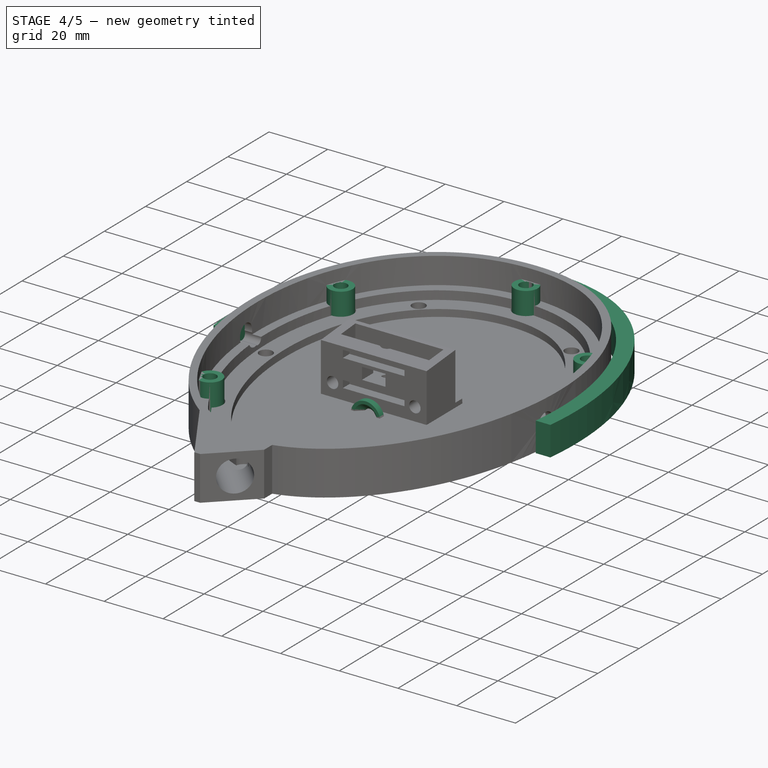
[diagram: stage 4 of 5 — iso view after this stage's code; geometry added in this stage tinted green]
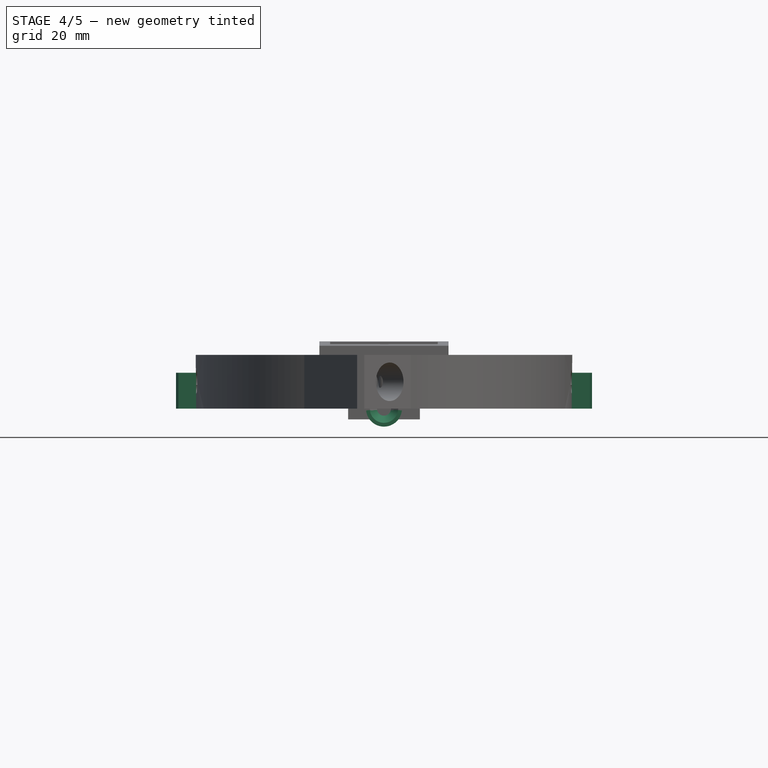
[diagram: stage 4 of 5 — front view after this stage's code; geometry added in this stage tinted green]
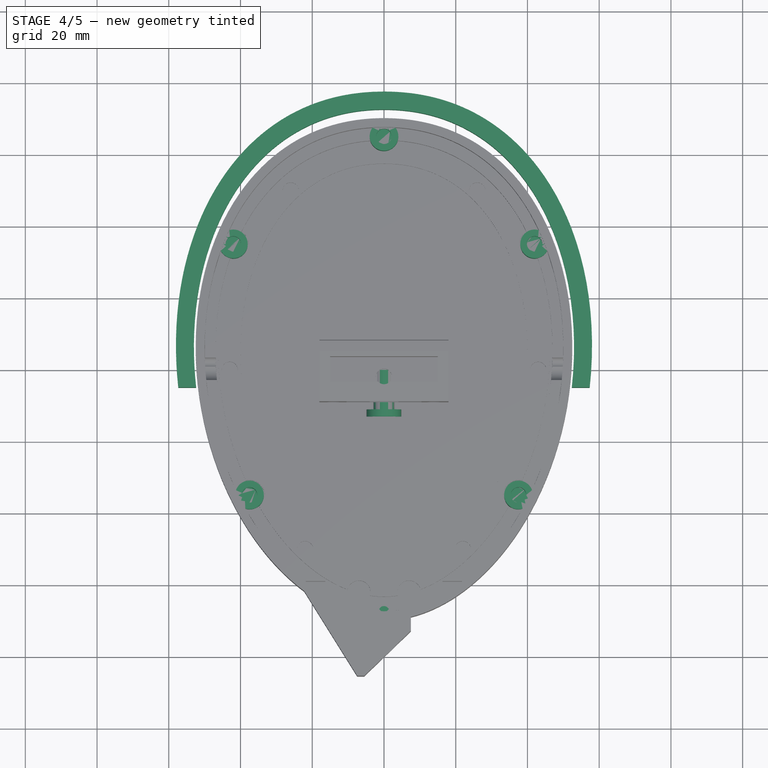
[diagram: stage 4 of 5 — top view after this stage's code; geometry added in this stage tinted green]
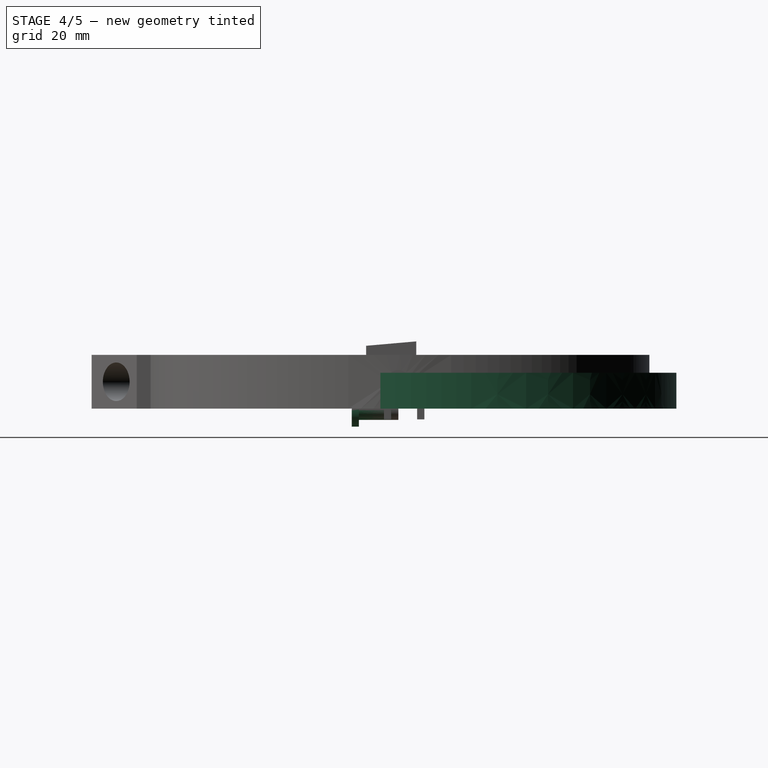
[diagram: stage 4 of 5 — right view after this stage's code; geometry added in this stage tinted green]
FEATURE [Sketcher::SketchObject] Sketch014
  ArcFitTolerance = 1e-06
  AttachmentSupport = -> [Pocket005]
  ExternalTypes = [0]
  FullyConstrained = true
  MakeInternals = false
  MapMode = 5
  Placement = pos=(0,0,1) rot=(0,0,1;0rad)
  _ExternalGeoVersion = 0
  sketch-geometry (5):
    g0: Circle CenterX=-42 CenterY=35 CenterZ=0 NormalX=0 NormalY=0 NormalZ=1 AngleXU=0 Radius=4
    g1: Circle CenterX=42 CenterY=35 CenterZ=0 NormalX=0 NormalY=0 NormalZ=1 AngleXU=0 Radius=4
    g2: Circle CenterX=-37.5 CenterY=-35 CenterZ=0 NormalX=0 NormalY=0 NormalZ=1 AngleXU=0 Radius=4
    g3: Circle CenterX=37.5 CenterY=-35 CenterZ=0 NormalX=0 NormalY=0 NormalZ=1 AngleXU=0 Radius=4
    g4: Circle CenterX=0 CenterY=65 CenterZ=0 NormalX=0 NormalY=0 NormalZ=1 AngleXU=0 Radius=4
  constraints (15):
    c: Diameter(g0) = 8
    c: Diameter(g1) = 8
    c: Diameter(g2) = 8
    c: Diameter(g3) = 8
    c: DistanceY(g3,g2) = 0
    c: DistanceY(g1,g0) = 0
    c: DistanceY(g-1,g0) = 35
    c: DistanceX(g0,g-1) = 42
    c: DistanceX(g-1,g1) = 42
    c: DistanceY(g2,g-1) = 35
    c: DistanceX(g2,g-1) = 37.5
    c: DistanceX(g-1,g3) = 37.5
    c: Diameter(g4) = 8
    c: PointOnObject(g4,g-2)
    c: DistanceY(g-1,g4) = 65
FEATURE [PartDesign::Pad] Pad005  label="Lid Mountin Posts"
  BaseFeature = -> Pocket005
  Direction = (0,0,1)
  Length = 10
  Length2 = 10
  Profile = -> Sketch014
  ReferenceAxis = -> Sketch014 [N_Axis]
  Refine = true
  SideType = 0
  Suppressed = false
  Type = 0
  Type2 = 0
FEATURE [Sketcher::SketchObject] Sketch015
  ArcFitTolerance = 1e-06
  AttachmentSupport = -> [Pad005]
  ExternalTypes = [0]
  FullyConstrained = true
  MakeInternals = false
  MapMode = 5
  Placement = pos=(0,0,11) rot=(0,0,1;0rad)
  _ExternalGeoVersion = 0
  sketch-geometry (5):
    g0: Circle CenterX=-42 CenterY=35 CenterZ=0 NormalX=0 NormalY=0 NormalZ=1 AngleXU=0 Radius=4
    g1: Circle CenterX=42 CenterY=35 CenterZ=0 NormalX=0 NormalY=0 NormalZ=1 AngleXU=0 Radius=4
    g2: Circle CenterX=-37.5 CenterY=-35 CenterZ=0 NormalX=0 NormalY=0 NormalZ=1 AngleXU=0 Radius=4
    g3: Circle CenterX=37.5 CenterY=-35 CenterZ=0 NormalX=0 NormalY=0 NormalZ=1 AngleXU=0 Radius=4
    g4: Circle CenterX=0 CenterY=65 CenterZ=0 NormalX=0 NormalY=0 NormalZ=1 AngleXU=0 Radius=4
  constraints (15):
    c: Diameter(g0) = 8
    c: Diameter(g1) = 8
    c: Diameter(g2) = 8
    c: Diameter(g3) = 8
    c: DistanceY(g3,g2) = 0
    c: DistanceY(g1,g0) = 0
    c: DistanceY(g-1,g0) = 35
    c: DistanceX(g0,g-1) = 42
    c: DistanceX(g-1,g1) = 42
    c: DistanceY(g2,g-1) = 35
    c: DistanceX(g2,g-1) = 37.5
    c: DistanceX(g-1,g3) = 37.5
    c: Diameter(g4) = 8
    c: PointOnObject(g4,g-2)
    c: DistanceY(g-1,g4) = 65
FEATURE [PartDesign::Hole] Hole001  label="LMP Brass Insert Holes"
  BaseFeature = -> Pad005
  BaseProfileType = 6
  CustomThreadClearance = 0
  Depth = 6
  DepthType = 0
  Diameter = 4.3
  DrillForDepth = false
  DrillPoint = 0
  DrillPointAngle = 118
  HoleCutCountersinkAngle = 90
  HoleCutCustomValues = false
  HoleCutDepth = 0
  HoleCutDiameter = 6.1
  HoleCutType = 0
  ModelThread = false
  Profile = -> Sketch015
  Refine = true
  Suppressed = false
  Tapered = false
  TaperedAngle = 90
  ThreadClass = 0
  ThreadDepth = 6
  ThreadDepthType = 0
  ThreadDiameter = 4.3
  ThreadDirection = 0
  ThreadFit = 0
  ThreadSize = 0
  ThreadType = 0
  Threaded = false
  UseCustomThreadClearance = false
FEATURE [PartDesign::Body] Body  label="Lid (#1)"
  AllowCompound = false
  Group = -> [Sketch,Pad,Sketch001,Pocket,Sketch013,Pocket007,Fillet002,Sketch016,Hole002]
  Origin = -> Origin
  Placement = pos=(0,0,11) rot=(0,0,1;0rad)
  Tip = -> Hole002
FEATURE [Sketcher::SketchObject] Sketch026
  ArcFitTolerance = 1e-06
  AttachmentSupport = -> [XY_Plane004]
  ExternalTypes = [0]
  FullyConstrained = false
  MakeInternals = false
  MapMode = 5
  _ExternalGeoVersion = 0
  sketch-geometry (24):
    g0: LineSegment [constr] StartX=53 StartY=-1.73201e-05 StartZ=0 EndX=-53 EndY=1.73201e-05 EndZ=0
    g1: GeomPoint [constr] X=-1.61664e-05 Y=-49.4697 Z=0
    g2: GeomPoint [constr] X=1.61664e-05 Y=49.4697 Z=0
    g3: BSplineCurve PolesCount=6 KnotsCount=2 Degree=5 IsPeriodic=0
    g4: LineSegment [constr] StartX=-58 StartY=0 StartZ=0 EndX=58 EndY=0 EndZ=0
    g5: GeomPoint [constr] X=0 Y=51.4028 Z=0
    g6: GeomPoint [constr] X=-35 Y=-5 Z=0
    g7: GeomPoint [constr] X=-70 Y=-5 Z=0
    g8: GeomPoint [constr] X=35 Y=-5 Z=0
    g9: GeomPoint [constr] X=70 Y=-5 Z=0
    g10: LineSegment [constr] StartX=-35 StartY=-5 StartZ=0 EndX=-70 EndY=-5 EndZ=0
    g11: LineSegment [constr] StartX=35 StartY=-5 StartZ=0 EndX=70 EndY=-5 EndZ=0
    g12: LineSegment StartX=-57.3392 StartY=-5 StartZ=0 EndX=-52.3604 EndY=-5 EndZ=0
    g13: LineSegment StartX=52.3604 StartY=-5 StartZ=0 EndX=57.3392 EndY=-5 EndZ=0
    g14: BSplineCurve PolesCount=11 KnotsCount=3 Degree=5 IsPeriodic=0
    g15: BSplineCurve PolesCount=6 KnotsCount=2 Degree=5 IsPeriodic=0
    g16-g21: Circle [constr] x6 (B-spline internal-alignment scaffolding for g3; pole/knot coordinates omitted)
    g22: GeomPoint [constr] X=0 Y=77.5 Z=0
    g23: GeomPoint [constr] X=-57.3392 Y=-5 Z=0
  constraints (21):
    c: DistanceX(g7,g6) = 35
    c: DistanceX(g6,g-1) = 35
    c: DistanceX(g8,g9) = 35
    c: DistanceX(g-1,g8) = 35
    c: DistanceY(g8,g-1) = 5
    c: DistanceY(g6,g-1) = 5
    c: Coincident(g10,g6)
    c: Coincident(g10,g7)
    c: Coincident(g11,g8)
    c: Coincident(g11,g9)
    c: Horizontal(g11)
    c: Horizontal(g12)
    c: PointOnObject(g13,g14)
    c: PointOnObject(g13,g15)
    c: PointOnObject(g12,g3)
    c: PointOnObject(g12,g14)
    c: PointOnObject(g14,g10)
    c: PointOnObject(g14,g11)
    c: PointOnObject(g15,g11)
    c: PointOnObject(g3,g10)
    c: InternalAlignment(g16-g23 -> g3) x8
FEATURE [PartDesign::Pad] Pad011  label="Yoke Base"
  Direction = (0,0,1)
  Length = 10
  Length2 = 10
  Profile = -> Sketch026
  ReferenceAxis = -> Sketch026 [N_Axis]
  Refine = true
  SideType = 0
  Suppressed = false
  Type = 0
  Type2 = 0
FEATURE [PartDesign::Body] Body004  label="Yoke (#3)"
  AllowCompound = false
  Group = -> [Sketch026,Pad011,DatumPlane006,Sketch027,Pad012,Sketch028,Pocket010,DatumPlane007,Sketch029,Pad013,Fillet,Sketch030,Pocket011,DatumPlane008,Sketch031,Pocket012]
  Origin = -> Origin004
  Placement = pos=(0,0,2.5) rot=(0,0,1;0rad)
  Tip = -> Pocket012
FEATURE [Sketcher::SketchObject] Sketch032
  ArcFitTolerance = 1e-06
  AttachmentSupport = -> [Hole001]
  ExternalTypes = [0]
  FullyConstrained = true
  MakeInternals = false
  MapMode = 5
  Placement = pos=(0,0,11) rot=(0,0,1;0rad)
  _ExternalGeoVersion = 0
  sketch-geometry (1):
    g0: Circle CenterX=0 CenterY=-67.5 CenterZ=0 NormalX=0 NormalY=0 NormalZ=1 AngleXU=0 Radius=1.5
  constraints (3):
    c: Diameter(g0) = 3
    c: PointOnObject(g0,g-2)
    c: DistanceY(g0,g-1) = 67.5
FEATURE [PartDesign::Pad] Pad014  label="Lid Bottom Support"
  BaseFeature = -> Hole001
  Direction = (0,0,1)
  Length = 10
  Length2 = 10
  Profile = -> Sketch032
  ReferenceAxis = -> Sketch032 [N_Axis]
  Refine = true
  Reversed = true
  SideType = 0
  Suppressed = false
  Type = 0
  Type2 = 0
FEATURE [Sketcher::SketchObject] Sketch033
  ArcFitTolerance = 1e-06
  AttachmentSupport = -> [XZ_Plane005]
  ExternalTypes = [0]
  FullyConstrained = true
  MakeInternals = false
  MapMode = 5
  Placement = pos=(0,0,0) rot=(1,0,0;1.5708rad)
  _ExternalGeoVersion = 0
  sketch-geometry (1):
    g0: Circle CenterX=0 CenterY=0 CenterZ=0 NormalX=0 NormalY=0 NormalZ=1 AngleXU=0 Radius=3.125
  constraints (2):
    c: Diameter(g0) = 6.25
    c: Coincident(g0,g-1)
FEATURE [PartDesign::Pad] Pad015
  Direction = (0,-1,2e-16)
  Length = 11
  Length2 = 10
  Placement = pos=(0,0,0) rot=(1,0,0;1.5708rad)
  Profile = -> Sketch033
  ReferenceAxis = -> Sketch033 [N_Axis]
  Refine = true
  SideType = 0
  Suppressed = false
  Type = 0
  Type2 = 0
FEATURE [Sketcher::SketchObject] Sketch034
  ArcFitTolerance = 1e-06
  AttachmentSupport = -> [Pad015]
  ExternalTypes = [0]
  FullyConstrained = true
  MakeInternals = false
  MapMode = 5
  Placement = pos=(0,-11,2.4e-15) rot=(1,0,0;1.5708rad)
  _ExternalGeoVersion = 0
  sketch-geometry (1):
    g0: Circle CenterX=0 CenterY=0 CenterZ=0 NormalX=0 NormalY=0 NormalZ=1 AngleXU=0 Radius=5
  constraints (2):
    c: Diameter(g0) = 10
    c: Coincident(g0,g-1)
FEATURE [PartDesign::Pad] Pad016
  BaseFeature = -> Pad015
  Direction = (0,-1,2e-16)
  Length = 2
  Length2 = 10
  Placement = pos=(0,0,0) rot=(1,0,0;1.5708rad)
  Profile = -> Sketch034
  ReferenceAxis = -> Sketch034 [N_Axis]
  Refine = true
  SideType = 0
  Suppressed = false
  Type = 0
  Type2 = 0
FEATURE [Sketcher::SketchObject] Sketch035
  ArcFitTolerance = 1e-06
  AttachmentSupport = -> [Pad016]
  ExternalTypes = [0]
  FullyConstrained = true
  MakeInternals = false
  MapMode = 5
  Placement = pos=(0,-13,5.3e-15) rot=(1,0,0;1.5708rad)
  _ExternalGeoVersion = 0
  sketch-geometry (1):
    g0: Circle CenterX=0 CenterY=0 CenterZ=0 NormalX=0 NormalY=0 NormalZ=1 AngleXU=0 Radius=2
  constraints (2):
    c: Diameter(g0) = 4
    c: Coincident(g0,g-1)
FEATURE [PartDesign::Hole] Hole003
  BaseFeature = -> Pad016
  BaseProfileType = 6
  CustomThreadClearance = 0
  Depth = 38.7454
  DepthType = 1
  Diameter = 3.9
  DrillForDepth = false
  DrillPoint = 1
  DrillPointAngle = 118
  HoleCutCountersinkAngle = 90
  HoleCutCustomValues = false
  HoleCutDepth = 3.95
  HoleCutDiameter = 7.9
  HoleCutType = 2
  ModelThread = false
  Placement = pos=(0,0,0) rot=(1,0,0;1.5708rad)
  Profile = -> Sketch035
  Refine = true
  Suppressed = false
  Tapered = false
  TaperedAngle = 90
  ThreadClass = 0
  ThreadDepth = 38.7454
  ThreadDepthType = 0
  ThreadDiameter = 3.5
  ThreadDirection = 0
  ThreadFit = 0
  ThreadSize = 10
  ThreadType = 1
  Threaded = false
  UseCustomThreadClearance = false
FEATURE [PartDesign::Body] Body005  label="Yoke M4 Bolt Sleve (#4)"
  AllowCompound = false
  Group = -> [Sketch033,Pad015,Sketch034,Pad016,Sketch035,Hole003]
  Origin = -> Origin005
  Placement = pos=(0,85.5,7.5) rot=(0,0,1;0rad)
  Tip = -> Hole003
FEATURE [Sketcher::SketchObject] Sketch036
  ArcFitTolerance = 1e-06
  AttachmentSupport = -> [Pad014]
  ExternalTypes = [0]
  FullyConstrained = true
  MakeInternals = false
  MapMode = 5
  Placement = pos=(0,0,1) rot=(0,0,1;0rad)
  _ExternalGeoVersion = 0
  sketch-geometry (35):
    g0: LineSegment StartX=-45 StartY=-5.75 StartZ=0 EndX=45 EndY=-5.75 EndZ=0
    g1: LineSegment StartX=45 StartY=-5.75 StartZ=0 EndX=45 EndY=-2.25 EndZ=0
    g2: LineSegment StartX=45 StartY=-2.25 StartZ=0 EndX=-45 EndY=-2.25 EndZ=0
    g3: LineSegment StartX=-45 StartY=-2.25 StartZ=0 EndX=-45 EndY=-5.75 EndZ=0
    g4: GeomPoint [constr] X=0 Y=-4 Z=0
    g5: LineSegment StartX=-45 StartY=-13.75 StartZ=0 EndX=45 EndY=-13.75 EndZ=0
    g6: LineSegment StartX=45 StartY=-13.75 StartZ=0 EndX=45 EndY=-10.25 EndZ=0
    g7: LineSegment StartX=45 StartY=-10.25 StartZ=0 EndX=-45 EndY=-10.25 EndZ=0
    g8: LineSegment StartX=-45 StartY=-10.25 StartZ=0 EndX=-45 EndY=-13.75 EndZ=0
    g9: GeomPoint [constr] X=0 Y=-12 Z=0
    g10: LineSegment StartX=-42.5 StartY=-21.75 StartZ=0 EndX=42.5 EndY=-21.75 EndZ=0
    g11: LineSegment StartX=42.5 StartY=-21.75 StartZ=0 EndX=42.5 EndY=-18.25 EndZ=0
    g12: LineSegment StartX=42.5 StartY=-18.25 StartZ=0 EndX=-42.5 EndY=-18.25 EndZ=0
    g13: LineSegment StartX=-42.5 StartY=-18.25 StartZ=0 EndX=-42.5 EndY=-21.75 EndZ=0
    g14: GeomPoint [constr] X=0 Y=-20 Z=0
    g15: LineSegment StartX=-40 StartY=-29.75 StartZ=0 EndX=40 EndY=-29.75 EndZ=0
    g16: LineSegment StartX=40 StartY=-29.75 StartZ=0 EndX=40 EndY=-26.25 EndZ=0
    g17: LineSegment StartX=40 StartY=-26.25 StartZ=0 EndX=-40 EndY=-26.25 EndZ=0
    g18: LineSegment StartX=-40 StartY=-26.25 StartZ=0 EndX=-40 EndY=-29.75 EndZ=0
    g19: GeomPoint [constr] X=0 Y=-28 Z=0
    g20: LineSegment StartX=-35 StartY=-37.75 StartZ=0 EndX=35 EndY=-37.75 EndZ=0
    g21: LineSegment StartX=35 StartY=-37.75 StartZ=0 EndX=35 EndY=-34.25 EndZ=0
    g22: LineSegment StartX=35 StartY=-34.25 StartZ=0 EndX=-35 EndY=-34.25 EndZ=0
    g23: LineSegment StartX=-35 StartY=-34.25 StartZ=0 EndX=-35 EndY=-37.75 EndZ=0
    g24: GeomPoint [constr] X=0 Y=-36 Z=0
    g25: LineSegment StartX=-30 StartY=-45.75 StartZ=0 EndX=30 EndY=-45.75 EndZ=0
    g26: LineSegment StartX=30 StartY=-45.75 StartZ=0 EndX=30 EndY=-42.25 EndZ=0
    g27: LineSegment StartX=30 StartY=-42.25 StartZ=0 EndX=-30 EndY=-42.25 EndZ=0
    g28: LineSegment StartX=-30 StartY=-42.25 StartZ=0 EndX=-30 EndY=-45.75 EndZ=0
    g29: GeomPoint [constr] X=0 Y=-44 Z=0
    g30: LineSegment StartX=-25 StartY=-53.75 StartZ=0 EndX=25 EndY=-53.75 EndZ=0
    g31: LineSegment StartX=25 StartY=-53.75 StartZ=0 EndX=25 EndY=-50.25 EndZ=0
    g32: LineSegment StartX=25 StartY=-50.25 StartZ=0 EndX=-25 EndY=-50.25 EndZ=0
    g33: LineSegment StartX=-25 StartY=-50.25 StartZ=0 EndX=-25 EndY=-53.75 EndZ=0
    g34: GeomPoint [constr] X=0 Y=-52 Z=0
  constraints (91):
    c: Coincident(g0,g1)
    c: Coincident(g1,g2)
    c: Coincident(g2,g3)
    c: Coincident(g3,g0)
    c: Horizontal(g0)
    c: Horizontal(g2)
    c: Vertical(g1)
    c: Vertical(g3)
    c: Symmetric(g2,g0,g4)
    c: Distance(g1,g3) = 90
    c: Distance(g0,g2) = 3.5
    c: PointOnObject(g4,g-2)
    c: Coincident(g5,g6)
    c: Coincident(g6,g7)
    c: Coincident(g7,g8)
    c: Coincident(g8,g5)
    c: Horizontal(g5)
    c: Horizontal(g7)
    c: Vertical(g6)
    c: Vertical(g8)
    c: Symmetric(g7,g5,g9)
    c: Distance(g6,g8) = 90
    c: Distance(g5,g7) = 3.5
    c: PointOnObject(g9,g-2)
    c: DistanceY(g4,g-1) = 4
    c: DistanceY(g9,g4) = 8
    c: Coincident(g10,g11)
    c: Coincident(g11,g12)
    c: Coincident(g12,g13)
    c: Coincident(g13,g10)
    c: Horizontal(g10)
    c: Horizontal(g12)
    c: Vertical(g11)
    c: Vertical(g13)
    c: Symmetric(g12,g10,g14)
    c: Distance(g11,g13) = 85
    c: Distance(g10,g12) = 3.5
    c: PointOnObject(g14,g-2)
    c: DistanceY(g14,g9) = 8
    c: Coincident(g15,g16)
    c: Coincident(g16,g17)
    c: Coincident(g17,g18)
    c: Coincident(g18,g15)
    c: Horizontal(g15)
    c: Horizontal(g17)
    c: Vertical(g16)
    c: Vertical(g18)
    c: Symmetric(g17,g15,g19)
    c: Distance(g16,g18) = 80
    c: Distance(g15,g17) = 3.5
    c: PointOnObject(g19,g-2)
    c: DistanceY(g19,g14) = 8
    c: Coincident(g20,g21)
    c: Coincident(g21,g22)
    c: Coincident(g22,g23)
    c: Coincident(g23,g20)
    c: Horizontal(g20)
    c: Horizontal(g22)
    c: Vertical(g21)
    c: Vertical(g23)
    c: Symmetric(g22,g20,g24)
    c: Distance(g21,g23) = 70
    c: Distance(g20,g22) = 3.5
    c: PointOnObject(g24,g-2)
    c: DistanceY(g24,g19) = 8
    c: Coincident(g25,g26)
    c: Coincident(g26,g27)
    c: Coincident(g27,g28)
    c: Coincident(g28,g25)
    c: Horizontal(g25)
    c: Horizontal(g27)
    c: Vertical(g26)
    c: Vertical(g28)
    c: Symmetric(g27,g25,g29)
    c: Distance(g26,g28) = 60
    c: Distance(g25,g27) = 3.5
    c: PointOnObject(g29,g-2)
    c: DistanceY(g29,g24) = 8
    c: Coincident(g30,g31)
    c: Coincident(g31,g32)
    c: Coincident(g32,g33)
    c: Coincident(g33,g30)
    c: Horizontal(g30)
    c: Horizontal(g32)
    c: Vertical(g31)
    c: Vertical(g33)
    c: Symmetric(g32,g30,g34)
    c: Distance(g31,g33) = 50
    c: Distance(g30,g32) = 3.5
    c: PointOnObject(g34,g-2)
    c: DistanceY(g34,g29) = 8
FEATURE [PartDesign::Pad] Pad017  label="Back Grill Bottom"
  BaseFeature = -> Pad014
  Direction = (0,0,1)
  Length = 1
  Length2 = 10
  Profile = -> Sketch036
  ReferenceAxis = -> Sketch036 [N_Axis]
  Refine = true
  Reversed = true
  SideType = 0
  Suppressed = false
  Type = 0
  Type2 = 0
FEATURE [PartDesign::Mirrored] Mirrored  label="Back Grill Bottom Top"
  BaseFeature = -> Pad017
  MirrorPlane = -> XZ_Plane001
  Originals = -> [Pad017]
  Refine = true
  Suppressed = false
  TransformMode = 0
FEATURE [PartDesign::Fillet] Fillet003  label="Back Grill Slot Rounding"
  Base = -> Mirrored [Edge289,Edge275,Edge259,Edge243,Edge251,Edge265,Edge281,Edge297,Edge305,Edge321,Edge337,Edge339,Edge323,Edge306,Edge299,Edge283,Edge267,Edge247,Edge239,Edge255,Edge271,Edge292,Edge316,Edge332,Edge313,Edge329,Edge331,Edge315,Edge291,Edge273,Edge257,Edge241,Edge249,Edge269,Edge285,Edge301,Edge309,Edge325,Edge341,Edge335,+12 more]
  BaseFeature = -> Mirrored
  Radius = 1.5
  Refine = true
  SupportTransform = false
  Suppressed = false
  UseAllEdges = false
FEATURE [PartDesign::Fillet] Fillet004  label="Back Grill Top/Bottom Slot"
  Base = -> Fillet003 [Edge159,Edge163,Edge155,Edge157]
  BaseFeature = -> Fillet003
  Radius = 0.15
  Refine = true
  SupportTransform = false
  Suppressed = false
  UseAllEdges = false
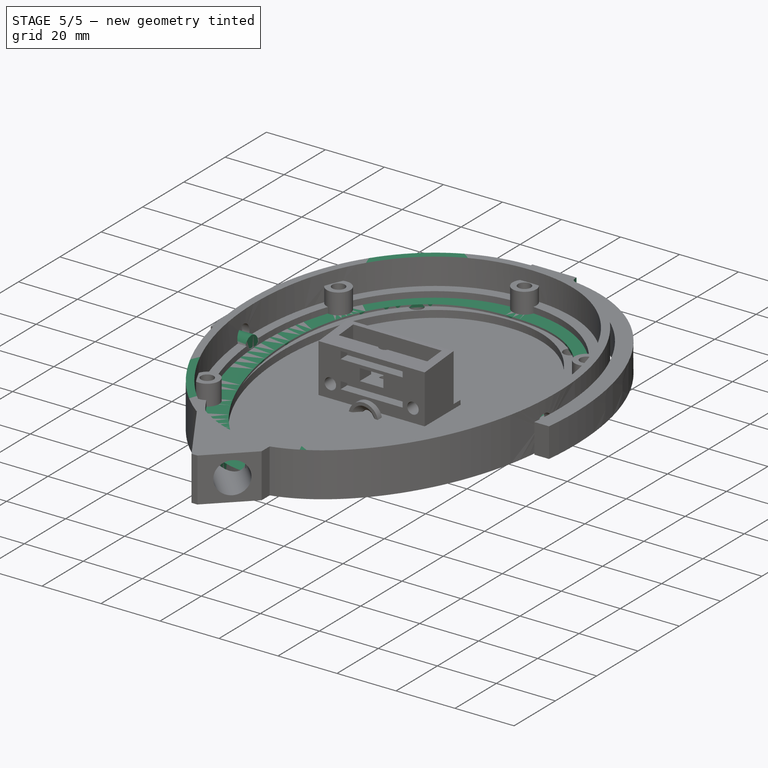
[diagram: stage 5 of 5 — iso view after this stage's code; geometry added in this stage tinted green]
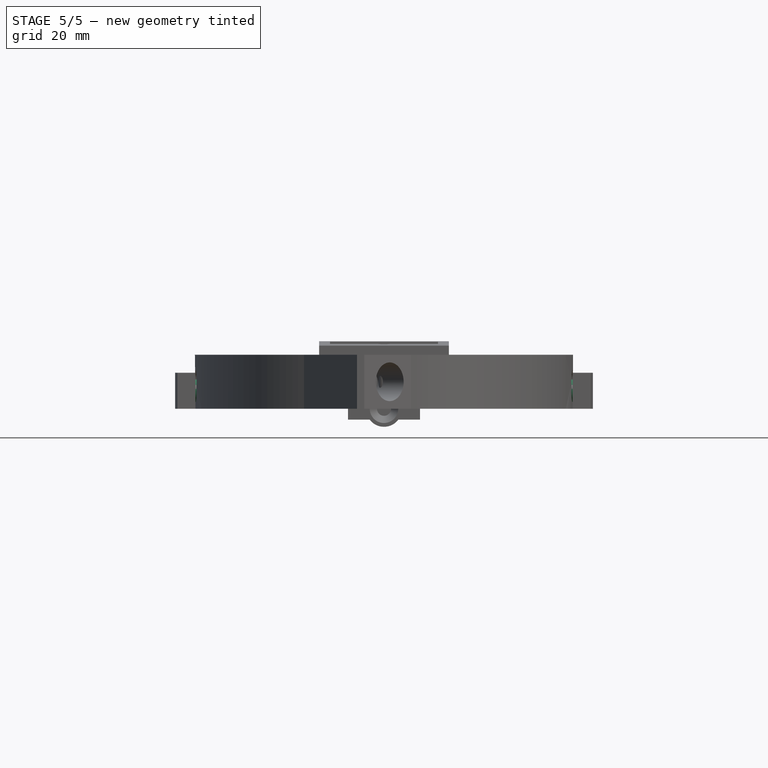
[diagram: stage 5 of 5 — front view after this stage's code; geometry added in this stage tinted green]
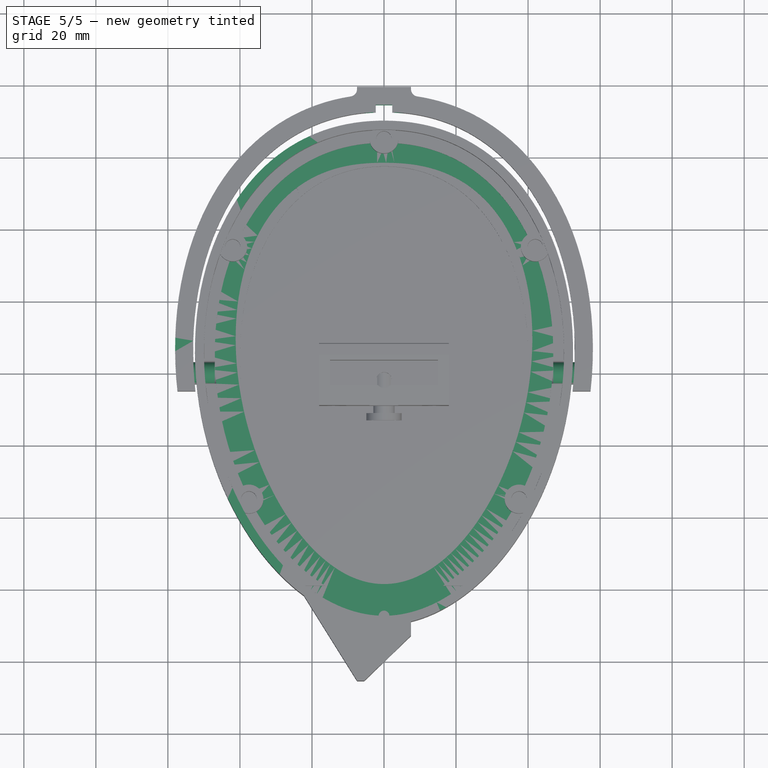
[diagram: stage 5 of 5 — top view after this stage's code; geometry added in this stage tinted green]
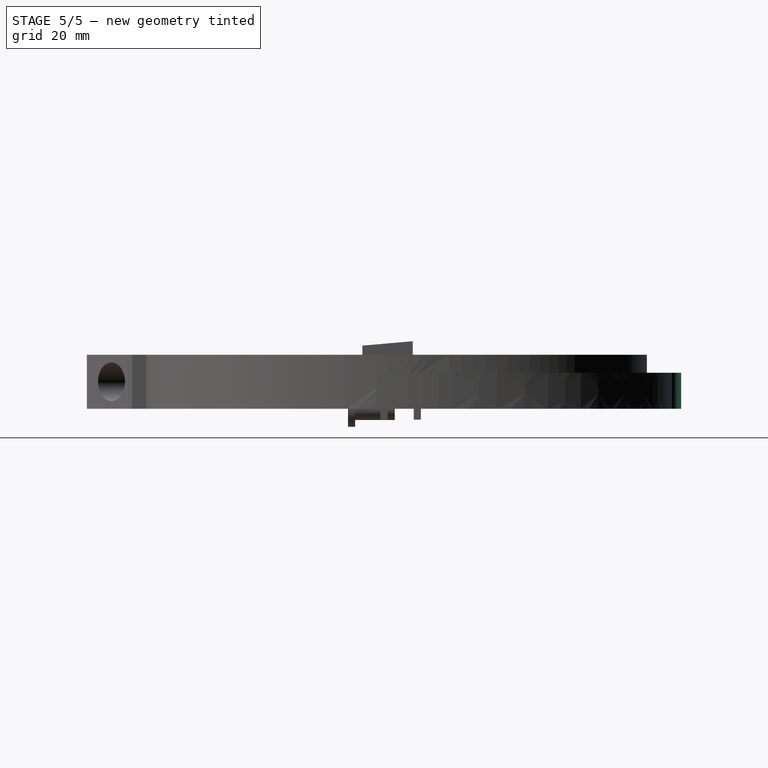
[diagram: stage 5 of 5 — right view after this stage's code; geometry added in this stage tinted green]
FEATURE [Sketcher::SketchObject] Sketch
  ArcFitTolerance = 1e-06
  AttachmentSupport = -> [XY_Plane]
  ExternalTypes = [0]
  FullyConstrained = false
  MakeInternals = false
  MapMode = 5
  _ExternalGeoVersion = 0
  sketch-geometry (19):
    g0: BSplineCurve PolesCount=11 KnotsCount=3 Degree=5 IsPeriodic=0
    g1: LineSegment [constr] StartX=-2.20587e-05 StartY=-67.5 StartZ=0 EndX=2.20587e-05 EndY=67.5 EndZ=0
    g2: LineSegment [constr] StartX=50 StartY=-1.63397e-05 StartZ=0 EndX=-50 EndY=1.63397e-05 EndZ=0
    g3: GeomPoint [constr] X=-1.48188e-05 Y=-45.3459 Z=0
    g4: GeomPoint [constr] X=1.48188e-05 Y=45.3459 Z=0
    g5-g11: Circle [constr] x7 (B-spline internal-alignment scaffolding for g0; pole/knot coordinates omitted)
    g12: GeomPoint [constr] X=-2.20587e-05 Y=-67.5 Z=0
    g13: GeomPoint [constr] X=2.20587e-05 Y=67.5 Z=0
    g14: GeomPoint [constr] X=-2.20587e-05 Y=-67.5 Z=0
    g15-g18: Circle [constr] x4 (B-spline internal-alignment scaffolding for g0; pole/knot coordinates omitted)
  constraints (6):
    c: Angle(g1) = 1.5708
    c: InternalAlignment(g5-g18 -> g0) x14
    c: DistanceY(g8,g15) = 0
    c: DistanceY(g7,g16) = 0
    c: DistanceY(g16,g-1) = 21.9375
    c: DistanceY(g-1,g15) = 45.5625
FEATURE [PartDesign::Pad] Pad
  Direction = (0,0,1)
  Length = 4
  Length2 = 10
  Profile = -> Sketch
  ReferenceAxis = -> Sketch [N_Axis]
  Refine = true
  SideType = 0
  Suppressed = false
  Type = 0
  Type2 = 0
FEATURE [Sketcher::SketchObject] Sketch001
  ArcFitTolerance = 1e-06
  AttachmentSupport = -> [Pad]
  ExternalTypes = [0]
  FullyConstrained = false
  MakeInternals = false
  MapMode = 5
  Placement = pos=(0,0,4) rot=(0,0,1;0rad)
  _ExternalGeoVersion = 0
  sketch-geometry (19):
    g0: BSplineCurve PolesCount=11 KnotsCount=3 Degree=5 IsPeriodic=0
    g1: LineSegment [constr] StartX=-1.91175e-05 StartY=-58.5 StartZ=0 EndX=1.91175e-05 EndY=58.5 EndZ=0
    g2: LineSegment [constr] StartX=37.5 StartY=-1.22548e-05 StartZ=0 EndX=-37.5 EndY=1.22548e-05 EndZ=0
    g3: GeomPoint [constr] X=-1.46731e-05 Y=-44.8999 Z=0
    g4: GeomPoint [constr] X=1.46731e-05 Y=44.8999 Z=0
    g5-g11: Circle [constr] x7 (B-spline internal-alignment scaffolding for g0; pole/knot coordinates omitted)
    g12: GeomPoint [constr] X=-1.91175e-05 Y=-58.5 Z=0
    g13: GeomPoint [constr] X=1.91175e-05 Y=58.5 Z=0
    g14: GeomPoint [constr] X=-1.91175e-05 Y=-58.5 Z=0
    g15-g18: Circle [constr] x4 (B-spline internal-alignment scaffolding for g0; pole/knot coordinates omitted)
  constraints (12):
    c: Angle(g1) = 1.5708
    c: InternalAlignment(g5-g18 -> g0) x14
    c: DistanceY(g8,g15) = 0
    c: DistanceY(g7,g16) = 0
    c: DistanceX(g15,g-1) = 70.25
    c: DistanceY(g-1,g15) = 51.5
    c: DistanceX(g-1,g8) = 70.25
    c: DistanceX(g16,g-1) = 56.5
    c: DistanceX(g-1,g7) = 56.5
    c: DistanceY(g16,g-1) = 20
    c: DistanceX(g17,g-1) = 26
    c: DistanceX(g-1,g6) = 26
FEATURE [PartDesign::Pocket] Pocket
  BaseFeature = -> Pad
  Direction = (0,0,-1)
  Length = 5
  Length2 = 5
  Profile = -> Sketch001
  ReferenceAxis = -> Sketch001 [N_Axis]
  Refine = true
  SideType = 0
  Suppressed = false
  Type = 1
  Type2 = 0
FEATURE [Sketcher::SketchObject] Sketch013
  ArcFitTolerance = 1e-06
  AttachmentOffset = pos=(0,0,0) rot=(0,0,1;3.14159rad)
  AttachmentSupport = -> [Pocket]
  ExternalTypes = [0]
  FullyConstrained = false
  MakeInternals = false
  MapMode = 5
  Placement = pos=(0,0,0) rot=(0,-1,0;3.14159rad)
  _ExternalGeoVersion = 0
  sketch-geometry (19):
    g0: BSplineCurve PolesCount=11 KnotsCount=3 Degree=5 IsPeriodic=0
    g1: LineSegment [constr] StartX=0 StartY=61 StartZ=0 EndX=0 EndY=-61 EndZ=0
    g2: LineSegment [constr] StartX=-43 StartY=0 StartZ=0 EndX=43 EndY=0 EndZ=0
    g3: GeomPoint [constr] X=0 Y=43.2666 Z=0
    g4: GeomPoint [constr] X=0 Y=-43.2666 Z=0
    g5-g11: Circle [constr] x7 (B-spline internal-alignment scaffolding for g0; pole/knot coordinates omitted)
    g12: GeomPoint [constr] X=0 Y=62 Z=0
    g13: GeomPoint [constr] X=0 Y=-61 Z=0
    g14: GeomPoint [constr] X=0 Y=62 Z=0
    g15-g18: Circle [constr] x4 (B-spline internal-alignment scaffolding for g0; pole/knot coordinates omitted)
  constraints (13):
    c: InternalAlignment(g5-g18 -> g0) x14
    c: DistanceY(g7,g16) = 0
    c: DistanceY(g8,g15) = 0
    c: DistanceY(g-1,g7) = 46
    c: DistanceY(g8,g-1) = 15.25
    c: DistanceX(g7,g-1) = 70.95
    c: DistanceX(g-1,g16) = 70.95
    c: DistanceX(g8,g-1) = 62
    c: DistanceX(g-1,g15) = 62
    c: DistanceY(g7,g6) = 16
    c: DistanceY(g17,g6) = 0
    c: DistanceY(g0,g6) = 0
    c: DistanceY(g0,g17) = 0
FEATURE [PartDesign::Pocket] Pocket007
  BaseFeature = -> Pocket
  Direction = (0,0,1)
  Length = 3.1
  Length2 = 5
  Profile = -> Sketch013
  ReferenceAxis = -> Sketch013 [N_Axis]
  Refine = true
  SideType = 0
  Suppressed = false
  Type = 0
  Type2 = 0
FEATURE [PartDesign::Fillet] Fillet002
  Base = -> Pocket007 [Edge7]
  BaseFeature = -> Pocket007
  Radius = 1
  Refine = true
  SupportTransform = false
  Suppressed = false
  UseAllEdges = false
FEATURE [Sketcher::SketchObject] Sketch016
  ArcFitTolerance = 1e-06
  AttachmentSupport = -> [Fillet002]
  ExternalTypes = [0]
  FullyConstrained = true
  MakeInternals = false
  MapMode = 5
  Placement = pos=(0,0,4) rot=(0,0,1;0rad)
  _ExternalGeoVersion = 0
  sketch-geometry (5):
    g0: Circle CenterX=-42 CenterY=35 CenterZ=0 NormalX=0 NormalY=0 NormalZ=1 AngleXU=0 Radius=4
    g1: Circle CenterX=42 CenterY=35 CenterZ=0 NormalX=0 NormalY=0 NormalZ=1 AngleXU=0 Radius=4
    g2: Circle CenterX=-37.5 CenterY=-35 CenterZ=0 NormalX=0 NormalY=0 NormalZ=1 AngleXU=0 Radius=4
    g3: Circle CenterX=37.5 CenterY=-35 CenterZ=0 NormalX=0 NormalY=0 NormalZ=1 AngleXU=0 Radius=4
    g4: Circle CenterX=0 CenterY=65 CenterZ=0 NormalX=0 NormalY=0 NormalZ=1 AngleXU=0 Radius=4
  constraints (15):
    c: Diameter(g0) = 8
    c: Diameter(g1) = 8
    c: Diameter(g2) = 8
    c: Diameter(g3) = 8
    c: DistanceY(g3,g2) = 0
    c: DistanceY(g1,g0) = 0
    c: DistanceY(g-1,g0) = 35
    c: DistanceX(g0,g-1) = 42
    c: DistanceX(g-1,g1) = 42
    c: DistanceY(g2,g-1) = 35
    c: DistanceX(g2,g-1) = 37.5
    c: DistanceX(g-1,g3) = 37.5
    c: Diameter(g4) = 8
    c: PointOnObject(g4,g-2)
    c: DistanceY(g-1,g4) = 65
FEATURE [PartDesign::Hole] Hole002  label="Screw Holes"
  BaseFeature = -> Fillet002
  BaseProfileType = 6
  CustomThreadClearance = 0
  Depth = 25
  DepthType = 0
  Diameter = 3.4
  DrillForDepth = false
  DrillPoint = 1
  DrillPointAngle = 118
  HoleCutCountersinkAngle = 90
  HoleCutCustomValues = false
  HoleCutDepth = 3.05
  HoleCutDiameter = 6.1
  HoleCutType = 2
  ModelThread = false
  Profile = -> Sketch016
  Refine = true
  Suppressed = false
  Tapered = false
  TaperedAngle = 90
  ThreadClass = 0
  ThreadDepth = 25
  ThreadDepthType = 0
  ThreadDiameter = 3
  ThreadDirection = 0
  ThreadFit = 0
  ThreadSize = 9
  ThreadType = 1
  Threaded = false
  UseCustomThreadClearance = false
FEATURE [PartDesign::Plane] DatumPlane006
  AttachmentOffset = pos=(57,0,0) rot=(0,1,0;1.5708rad)
  AttachmentSupport = -> [Pad011]
  Length = 64.4568
  MapMode = 2
  Placement = pos=(57,0,0) rot=(0,1,0;1.5708rad)
  ResizeMode = 0
  Width = 118.957
FEATURE [Sketcher::SketchObject] Sketch027
  ArcFitTolerance = 1e-06
  AttachmentSupport = -> [DatumPlane006]
  ExternalTypes = [0]
  FullyConstrained = true
  MakeInternals = false
  MapMode = 5
  Placement = pos=(57,0,0) rot=(0,1,0;1.5708rad)
  _ExternalGeoVersion = 0
  sketch-geometry (2):
    g0: Circle CenterX=-5 CenterY=0 CenterZ=0 NormalX=0 NormalY=0 NormalZ=1 AngleXU=0 Radius=3.125
    g1: Circle CenterX=-3.2 CenterY=1.8 CenterZ=0 NormalX=0 NormalY=0 NormalZ=1 AngleXU=0 Radius=1.2
  constraints (6):
    c: Diameter(g0) = 6.25
    c: PointOnObject(g0,g-1)
    c: Diameter(g1) = 2.4
    c: DistanceY(g0,g1) = 1.8
    c: DistanceX(g0,g1) = 1.8
    c: DistanceX(g0,g-1) = 5
FEATURE [PartDesign::Pad] Pad012  label="Yoke-Cup Mounting posts"
  BaseFeature = -> Pad011
  Direction = (1,0,2e-16)
  Length = 57
  Length2 = 10
  Profile = -> Sketch027
  ReferenceAxis = -> Sketch027 [N_Axis]
  Refine = true
  Reversed = true
  SideType = 0
  Suppressed = false
  Type = 3
  Type2 = 0
  UpToFace = -> Pad011 [Face3]
FEATURE [Sketcher::SketchObject] Sketch028
  ArcFitTolerance = 1e-06
  AttachmentSupport = -> [Pad012]
  ExternalTypes = [0]
  FullyConstrained = true
  MakeInternals = false
  MapMode = 5
  Placement = pos=(0,0,10) rot=(0,0,1;0rad)
  _ExternalGeoVersion = 0
  sketch-geometry (5):
    g0: LineSegment StartX=-47 StartY=-5 StartZ=0 EndX=47 EndY=-5 EndZ=0
    g1: LineSegment StartX=47 StartY=-5 StartZ=0 EndX=47 EndY=5 EndZ=0
    g2: LineSegment StartX=47 StartY=5 StartZ=0 EndX=-47 EndY=5 EndZ=0
    g3: LineSegment StartX=-47 StartY=5 StartZ=0 EndX=-47 EndY=-5 EndZ=0
    g4: GeomPoint [constr] X=0 Y=0 Z=0
  constraints (12):
    c: Coincident(g0,g1)
    c: Coincident(g1,g2)
    c: Coincident(g2,g3)
    c: Coincident(g3,g0)
    c: Horizontal(g0)
    c: Horizontal(g2)
    c: Vertical(g1)
    c: Vertical(g3)
    c: Symmetric(g2,g0,g4)
    c: Distance(g1,g3) = 94
    c: Distance(g0,g2) = 10
    c: Coincident(g4,g-1)
FEATURE [PartDesign::Pocket] Pocket010  label="Yoke-Cup Posts Cut"
  BaseFeature = -> Pad012
  Direction = (0,0,-1)
  Length = 5
  Length2 = 5
  Profile = -> Sketch028
  ReferenceAxis = -> Sketch028 [N_Axis]
  Refine = true
  SideType = 0
  Suppressed = false
  Type = 1
  Type2 = 0
FEATURE [PartDesign::Plane] DatumPlane007
  AttachmentOffset = pos=(0,-1,0) rot=(-1,0,0;1.5708rad)
  AttachmentSupport = -> [Pocket010]
  Length = 131.189
  MapMode = 7
  Placement = pos=(0,76.5,0) rot=(0,0.707107,0.707107;3.14159rad)
  ResizeMode = 0
  Width = 65.2289
FEATURE [Sketcher::SketchObject] Sketch029
  ArcFitTolerance = 1e-06
  AttachmentSupport = -> [DatumPlane007]
  ExternalTypes = [0]
  FullyConstrained = true
  MakeInternals = false
  MapMode = 5
  Placement = pos=(0,76.5,0) rot=(0,0.707107,0.707107;3.14159rad)
  _ExternalGeoVersion = 0
  sketch-geometry (5):
    g0: LineSegment StartX=-7.5 StartY=0 StartZ=0 EndX=7.5 EndY=0 EndZ=0
    g1: LineSegment StartX=7.5 StartY=0 StartZ=0 EndX=7.5 EndY=10 EndZ=0
    g2: LineSegment StartX=7.5 StartY=10 StartZ=0 EndX=-7.5 EndY=10 EndZ=0
    g3: LineSegment StartX=-7.5 StartY=10 StartZ=0 EndX=-7.5 EndY=0 EndZ=0
    g4: GeomPoint [constr] X=0 Y=5 Z=0
  constraints (13):
    c: Coincident(g0,g1)
    c: Coincident(g1,g2)
    c: Coincident(g2,g3)
    c: Coincident(g3,g0)
    c: Horizontal(g0)
    c: Horizontal(g2)
    c: Vertical(g1)
    c: Vertical(g3)
    c: Symmetric(g2,g0,g4)
    c: Distance(g1,g3) = 15
    c: Distance(g0,g2) = 10
    c: PointOnObject(g4,g-2)
    c: DistanceY(g-1,g4) = 5
FEATURE [PartDesign::Pad] Pad013  label="Yoke-Headband Mount"
  BaseFeature = -> Pocket010
  Direction = (0,1,-2e-16)
  Length = 3
  Length2 = 10
  Profile = -> Sketch029
  ReferenceAxis = -> Sketch029 [N_Axis]
  Refine = true
  SideType = 0
  Suppressed = false
  Type = 0
  Type2 = 0
FEATURE [PartDesign::Fillet] Fillet  label="Yoke-Headband Mount Round"
  Base = -> Pad013 [Edge1,Edge8]
  BaseFeature = -> Pad013
  Radius = 2
  Refine = true
  SupportTransform = false
  Suppressed = false
  UseAllEdges = false
FEATURE [Sketcher::SketchObject] Sketch030
  ArcFitTolerance = 1e-06
  AttachmentOffset = pos=(0,10,0) rot=(0,0,1;3.14159rad)
  AttachmentSupport = -> [Fillet]
  ExternalTypes = [0]
  FullyConstrained = true
  MakeInternals = false
  MapMode = 5
  Placement = pos=(0,79.5,10) rot=(1,0,0;4.71239rad)
  _ExternalGeoVersion = 0
  sketch-geometry (1):
    g0: Circle CenterX=0 CenterY=5 CenterZ=0 NormalX=0 NormalY=0 NormalZ=1 AngleXU=0 Radius=3.25
  constraints (3):
    c: Diameter(g0) = 6.5
    c: PointOnObject(g0,g-2)
    c: DistanceY(g-1,g0) = 5
FEATURE [PartDesign::Pocket] Pocket011
  BaseFeature = -> Fillet
  Direction = (0,-1,2e-16)
  Length = 5
  Length2 = 5
  Profile = -> Sketch030
  ReferenceAxis = -> Sketch030 [N_Axis]
  Refine = true
  SideType = 0
  Suppressed = false
  Type = 1
  Type2 = 0
FEATURE [PartDesign::Plane] DatumPlane008
  AttachmentOffset = pos=(0,72,0) rot=(1,0,0;1.5708rad)
  AttachmentSupport = -> [Pocket011]
  Length = 131.189
  MapMode = 5
  Placement = pos=(0,72,10) rot=(1,0,0;1.5708rad)
  ResizeMode = 0
  Width = 65.2289
FEATURE [Sketcher::SketchObject] Sketch031
  ArcFitTolerance = 1e-06
  AttachmentSupport = -> [DatumPlane008]
  ExternalTypes = [0]
  FullyConstrained = true
  MakeInternals = false
  MapMode = 5
  Placement = pos=(0,72,10) rot=(1,0,0;1.5708rad)
  _ExternalGeoVersion = 0
  sketch-geometry (1):
    g0: Circle CenterX=0 CenterY=-5 CenterZ=0 NormalX=0 NormalY=0 NormalZ=1 AngleXU=0 Radius=5.5
  constraints (3):
    c: Diameter(g0) = 11
    c: PointOnObject(g0,g-2)
    c: DistanceY(g0,g-1) = 5
FEATURE [PartDesign::Pocket] Pocket012
  BaseFeature = -> Pocket011
  Direction = (0,1,-2e-16)
  Length = 2.5
  Length2 = 5
  Profile = -> Sketch031
  ReferenceAxis = -> Sketch031 [N_Axis]
  Refine = true
  SideType = 0
  Suppressed = false
  Type = 0
  Type2 = 0
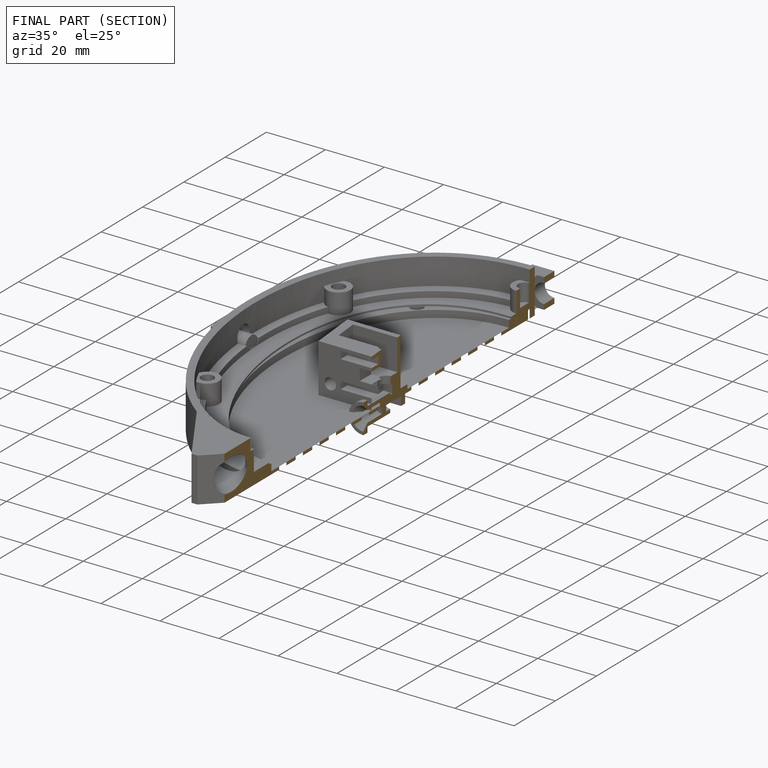
[diagram: finished part — half-section view (interior)]
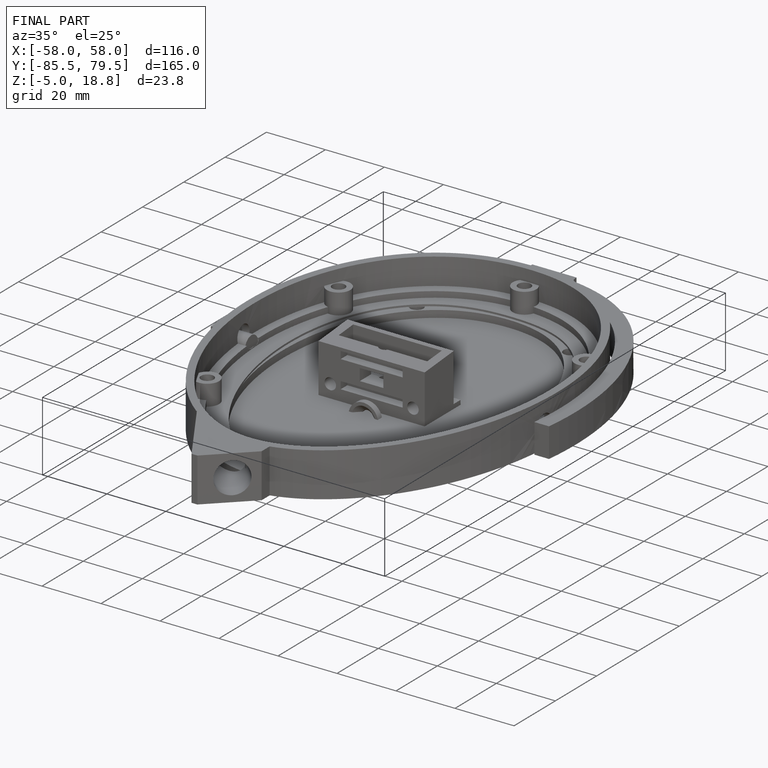
[diagram: finished part — iso view with bounding-box wireframe]
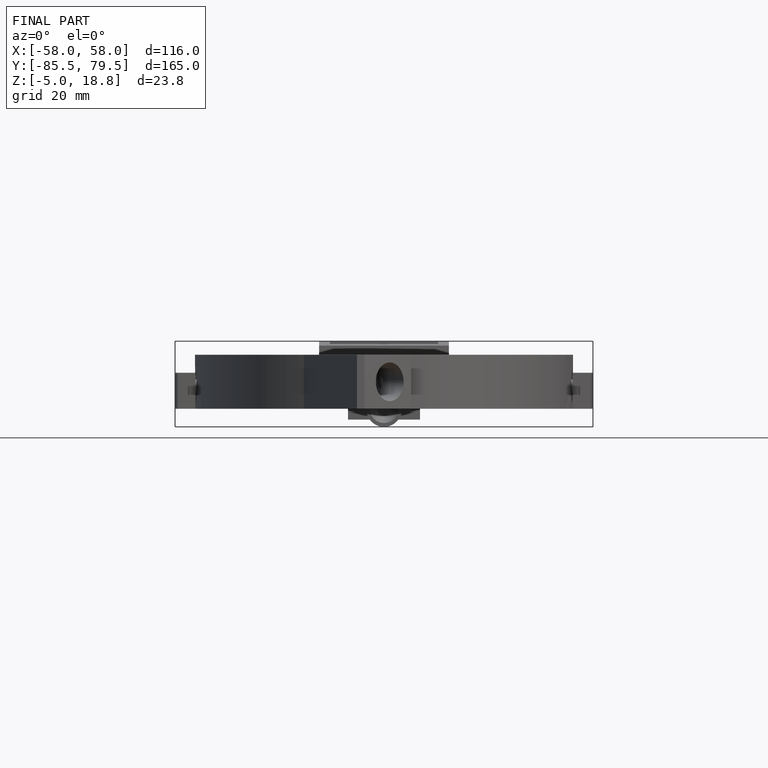
[diagram: finished part — front view with bounding-box wireframe]
